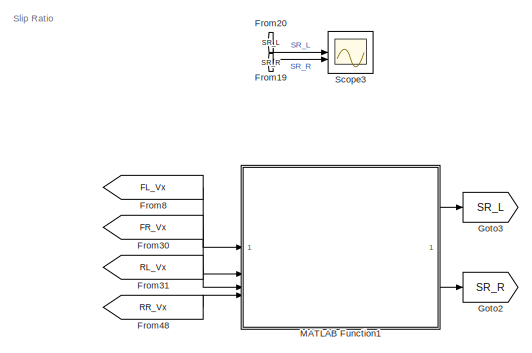
[diagram: root canvas - part 1/8, top left region]
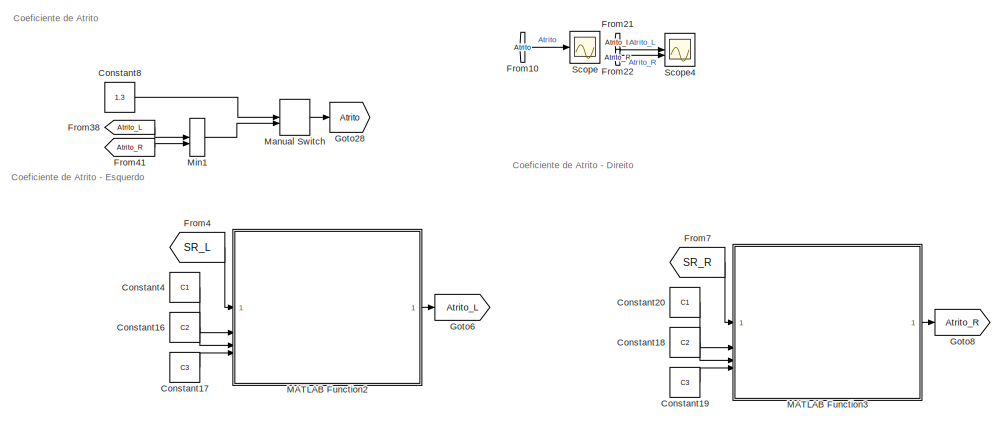
[diagram: root canvas - part 2/8, top left region]
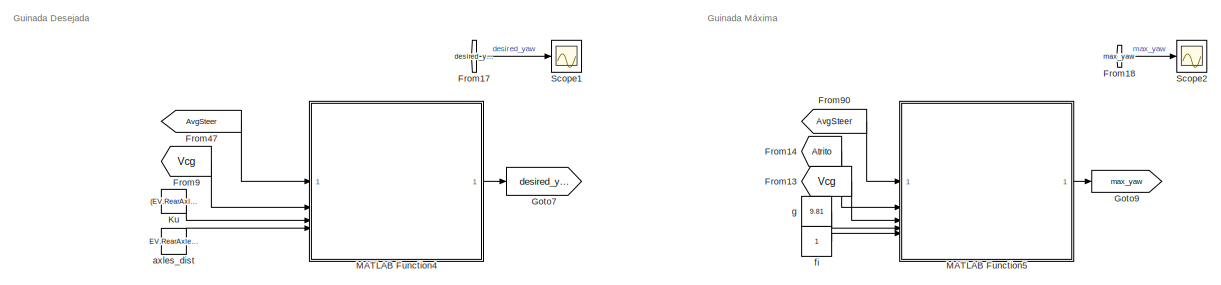
[diagram: root canvas - part 3/8, middle left region]
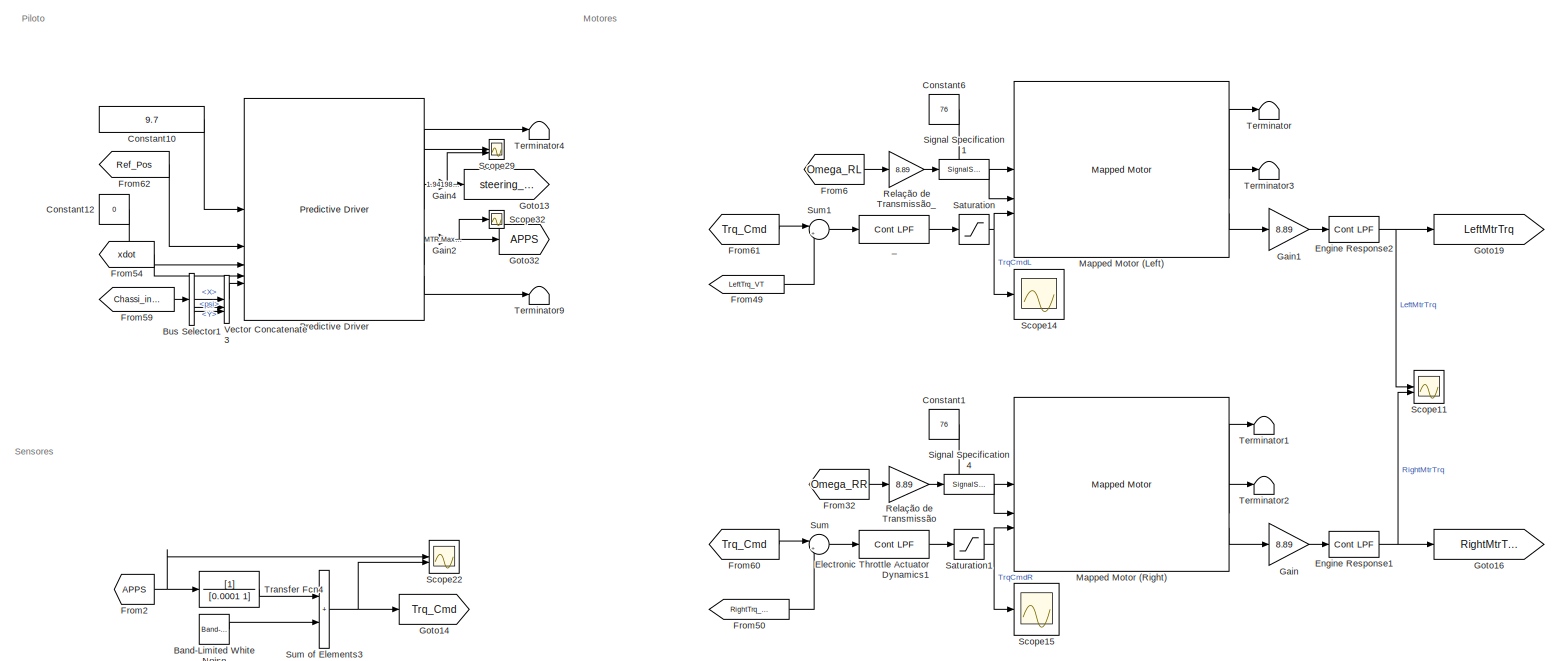
[diagram: root canvas - part 4/8, central region]
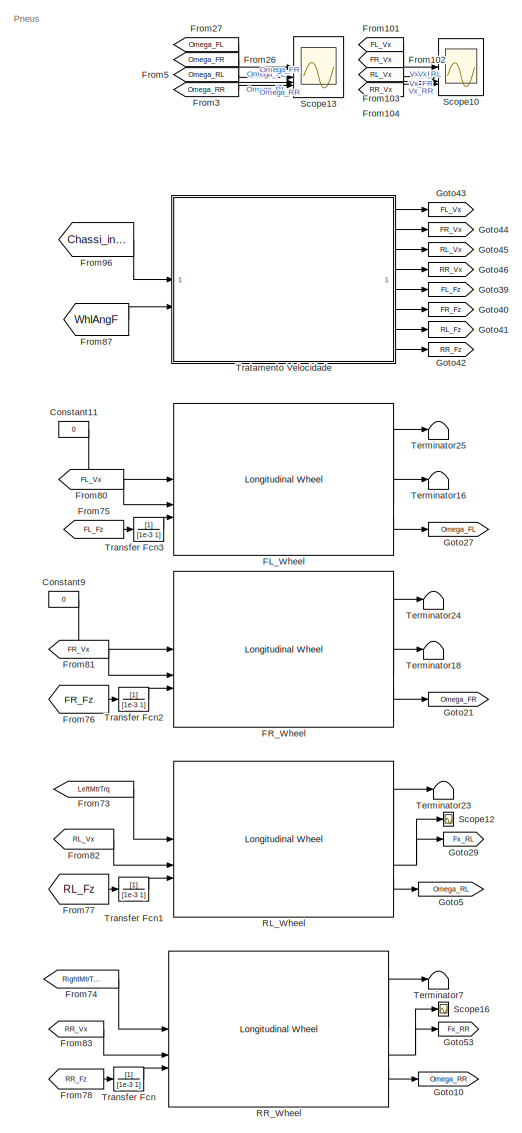
[diagram: root canvas - part 5/8, middle right region]
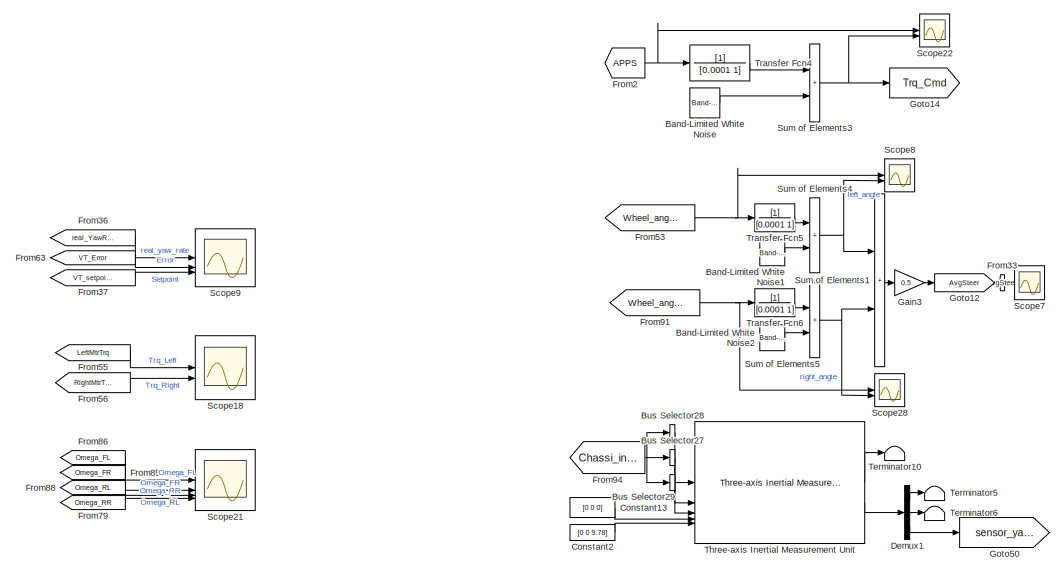
[diagram: root canvas - part 6/8, bottom center region]
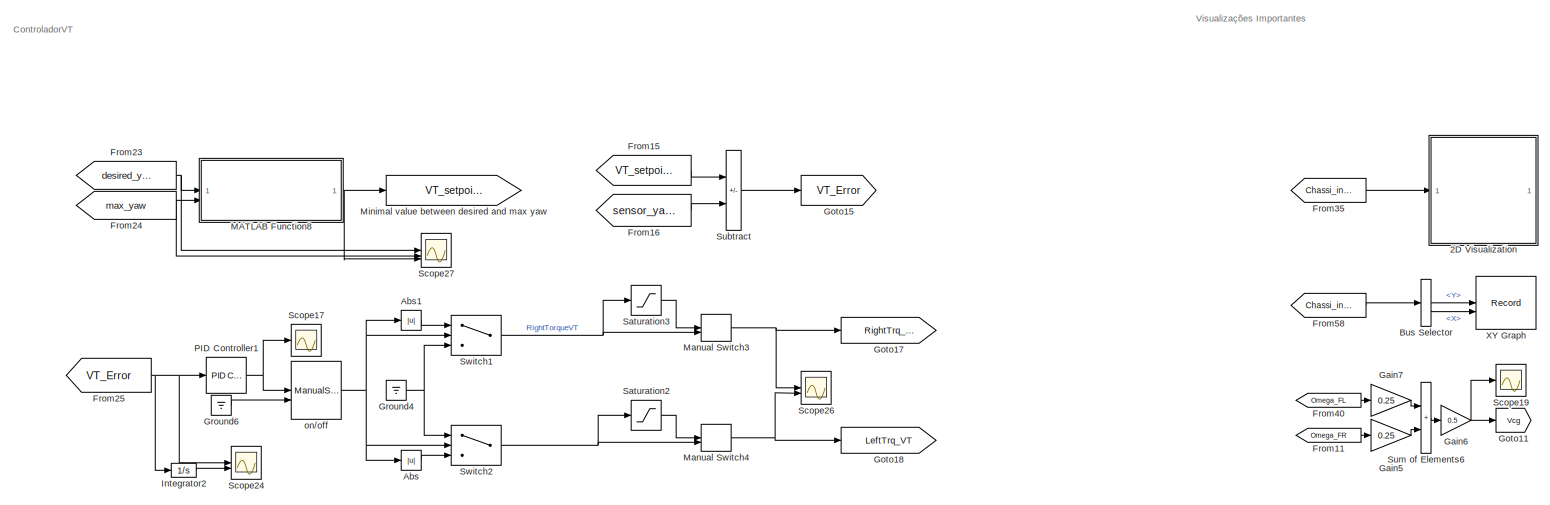
[diagram: root canvas - part 7/8, bottom left region]
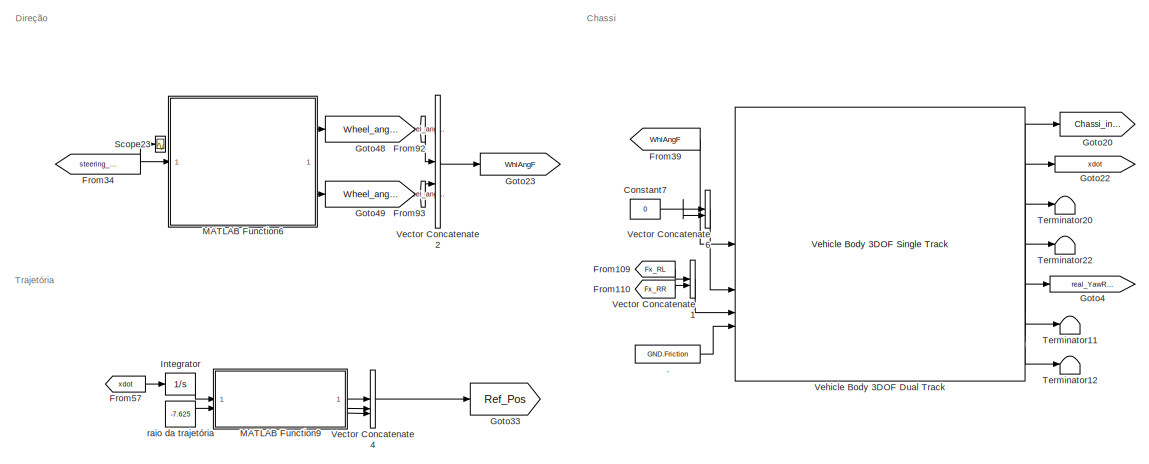
[diagram: root canvas - part 8/8, bottom right region]
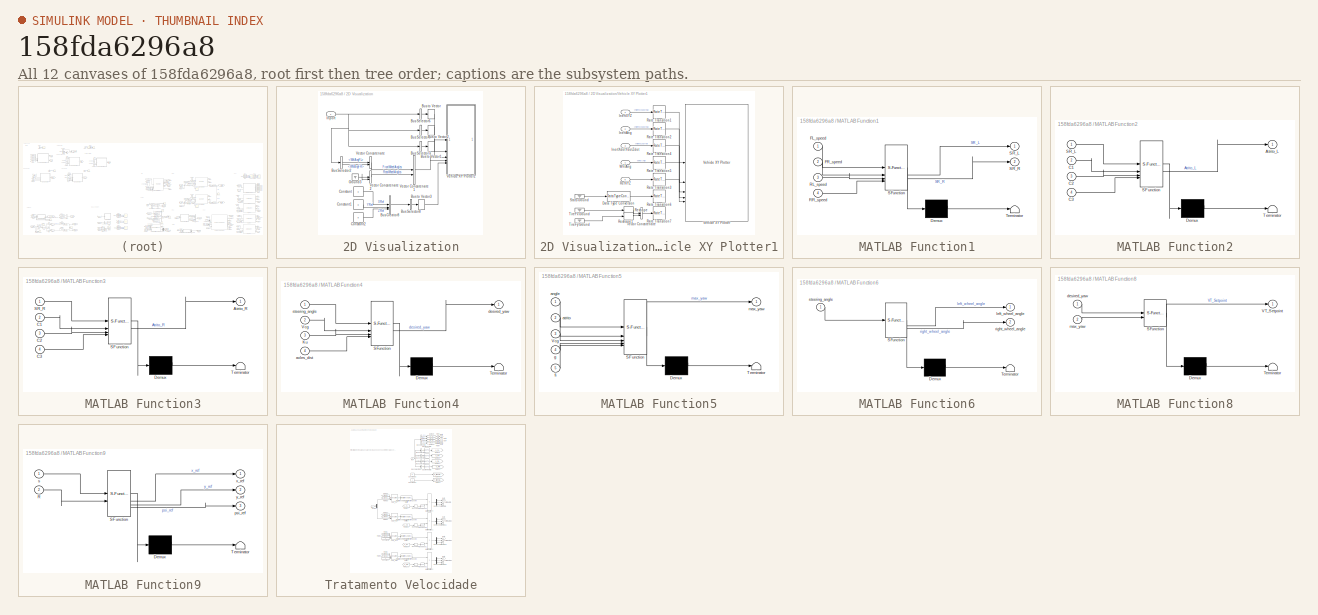
[diagram: thumbnail index - all 12 canvases of the model, root first then tree order]
MODEL slx_158fda6296a8
KIND model
CONFIG AbsTol = auto
CONFIG EnableMultiTasking = off
CONFIG FixedStep = auto
CONFIG MaxStep = 1e-3
CONFIG MinStep = auto
CONFIG RelTol = 1e-3
CONFIG SampleTimeConstraint = Unconstrained
CONFIG SolverName = VariableStepAuto
CONFIG StartTime = 0.0
CONFIG StopTime = 16
WORKSPACE source: mxarray member
WORKSPACE w = 0.5
BLOCK [Constant] .
  Value = GND.Friction
BLOCK [SubSystem] 2D Visualization
BLOCK [BusCreator] 2D Visualization/Bus Creator8
  DisplayOption = bar
  InheritFromInputs = on
  Inputs = 3
BLOCK [BusSelector] 2D Visualization/Bus Selector1
  OutputAsBus = on
  OutputSignals = InertFrm.Cg.Ang.phi,InertFrm.Cg.Ang.theta,InertFrm.Cg.Ang.psi
BLOCK [BusSelector] 2D Visualization/Bus Selector2
  OutputSignals = BdyFrm.FrntAxl.Steer.WhlAngFL,BdyFrm.FrntAxl.Steer.WhlAngFR
BLOCK [BusSelector] 2D Visualization/Bus Selector6
  OutputAsBus = on
  OutputSignals = InertFrm.Geom.Disp.X,InertFrm.Geom.Disp.Y,InertFrm.Geom.Disp.Z
BLOCK [BusSelector] 2D Visualization/Bus Selector7
  OutputAsBus = on
  OutputSignals = InertFrm.Geom.Vel.Xdot,InertFrm.Geom.Vel.Ydot,InertFrm.Geom.Vel.Zdot
BLOCK [BusSelector] 2D Visualization/Bus Selector8
  OutputAsBus = on
  OutputSignals = XRef,YRef,ZRef
BLOCK [BusToVector] 2D Visualization/Bus to Vector
BLOCK [BusToVector] 2D Visualization/Bus to Vector1
BLOCK [BusToVector] 2D Visualization/Bus to Vector2
BLOCK [BusToVector] 2D Visualization/Bus to Vector3
BLOCK [Constant] 2D Visualization/Constant
  Value = 0
BLOCK [Constant] 2D Visualization/Constant1
  Value = 0
BLOCK [Constant] 2D Visualization/Constant2
  Value = 0
BLOCK [Ground] 2D Visualization/Ground3
BLOCK [Inport] 2D Visualization/Inport
BLOCK [Concatenate] 2D Visualization/Vector Concatenate
BLOCK [Concatenate] 2D Visualization/Vector Concatenate1
BLOCK [Concatenate] 2D Visualization/Vector Concatenate2
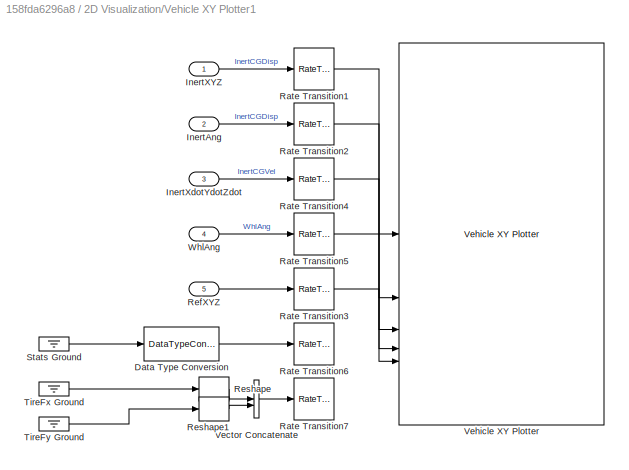
BLOCK [SubSystem] 2D Visualization/Vehicle XY Plotter1
BLOCK [DataTypeConversion] 2D Visualization/Vehicle XY Plotter1/Data Type Conversion
  OutDataTypeStr = double
  RndMeth = Floor
  SaturateOnIntegerOverflow = off
BLOCK [Inport] 2D Visualization/Vehicle XY Plotter1/InertAng
  Port = 2
BLOCK [Inport] 2D Visualization/Vehicle XY Plotter1/InertXYZ
BLOCK [Inport] 2D Visualization/Vehicle XY Plotter1/InertXdotYdotZdot
  Port = 3
BLOCK [RateTransition] 2D Visualization/Vehicle XY Plotter1/Rate Transition1
  Deterministic = off
  OutPortSampleTime = pltDT
BLOCK [RateTransition] 2D Visualization/Vehicle XY Plotter1/Rate Transition2
  Deterministic = off
  OutPortSampleTime = pltDT
BLOCK [RateTransition] 2D Visualization/Vehicle XY Plotter1/Rate Transition3
  Deterministic = off
  OutPortSampleTime = pltDT
BLOCK [RateTransition] 2D Visualization/Vehicle XY Plotter1/Rate Transition4
  Deterministic = off
  OutPortSampleTime = pltDT
BLOCK [RateTransition] 2D Visualization/Vehicle XY Plotter1/Rate Transition5
  Deterministic = off
  OutPortSampleTime = pltDT
BLOCK [RateTransition] 2D Visualization/Vehicle XY Plotter1/Rate Transition6
  Deterministic = off
  OutPortSampleTime = pltDT
BLOCK [RateTransition] 2D Visualization/Vehicle XY Plotter1/Rate Transition7
  Deterministic = off
  OutPortSampleTime = pltDT
BLOCK [Inport] 2D Visualization/Vehicle XY Plotter1/RefXYZ
  Port = 5
BLOCK [Reshape] 2D Visualization/Vehicle XY Plotter1/Reshape
  OutputDimensionality = Row vector (2-D)
BLOCK [Reshape] 2D Visualization/Vehicle XY Plotter1/Reshape1
  OutputDimensionality = Row vector (2-D)
BLOCK [Ground] 2D Visualization/Vehicle XY Plotter1/Stats Ground
BLOCK [Ground] 2D Visualization/Vehicle XY Plotter1/TireFx Ground
BLOCK [Ground] 2D Visualization/Vehicle XY Plotter1/TireFy Ground
BLOCK [Concatenate] 2D Visualization/Vehicle XY Plotter1/Vector Concatenate
  Mode = Multidimensional array
BLOCK [Reference] 2D Visualization/Vehicle XY Plotter1/Vehicle XY Plotter  REF=vehdynlibviscommon/Vehicle XY Plotter
  SourceBlock = vehdynlibviscommon/Vehicle XY Plotter
  SourceType = Vehicle XY Plotter
BLOCK [Inport] 2D Visualization/Vehicle XY Plotter1/WhlAng
  Port = 4
BLOCK [Abs] Abs
  SaturateOnIntegerOverflow = off
BLOCK [Abs] Abs1
  SaturateOnIntegerOverflow = off
BLOCK [Reference] Band-Limited White Noise  REF=simulink/Sources/Band-Limited
White Noise
  SourceBlock = simulink/Sources/Band-Limited\nWhite Noise
  SourceType = Band-Limited White Noise.
BLOCK [Reference] Band-Limited White Noise1  REF=simulink/Sources/Band-Limited
White Noise
  SourceBlock = simulink/Sources/Band-Limited\nWhite Noise
  SourceType = Band-Limited White Noise.
BLOCK [Reference] Band-Limited White Noise2  REF=simulink/Sources/Band-Limited
White Noise
  SourceBlock = simulink/Sources/Band-Limited\nWhite Noise
  SourceType = Band-Limited White Noise.
BLOCK [BusSelector] Bus Selector
  OutputSignals = InertFrm.Cg.Disp.Y,InertFrm.Cg.Disp.X
BLOCK [BusSelector] Bus Selector1
  OutputSignals = InertFrm.Cg.Disp.X,InertFrm.Cg.Disp.Y,InertFrm.Cg.Ang.psi
BLOCK [BusSelector] Bus Selector27
  OutputAsBus = on
  OutputSignals = BdyFrm.Cg.AngVel
BLOCK [BusSelector] Bus Selector28
  OutputAsBus = on
  OutputSignals = BdyFrm.Cg.Acc.ax,BdyFrm.Cg.Acc.ay,BdyFrm.Cg.Acc.az
BLOCK [BusSelector] Bus Selector29
  OutputAsBus = on
  OutputSignals = BdyFrm.Cg.Acc.xddot,BdyFrm.Cg.Acc.yddot,BdyFrm.Cg.Acc.zddot
BLOCK [Constant] Constant1
  Value = 76
BLOCK [Constant] Constant10
  Value = 9.7
BLOCK [Constant] Constant11
  Value = 0
BLOCK [Constant] Constant12
  Value = 0
BLOCK [Constant] Constant13
  Value = [0 0 0]
BLOCK [Constant] Constant16
  Value = C2
BLOCK [Constant] Constant17
  Value = C3
BLOCK [Constant] Constant18
  Value = C2
BLOCK [Constant] Constant19
  Value = C3
BLOCK [Constant] Constant2
  Value = [0 0 9.78]
BLOCK [Constant] Constant20
  Value = C1
BLOCK [Constant] Constant4
  Value = C1
BLOCK [Constant] Constant6
  Value = 76
BLOCK [Constant] Constant7
  Value = 0
BLOCK [Constant] Constant8
  Value = 1.3
BLOCK [Constant] Constant9
  Value = 0
BLOCK [Demux] Demux1
  Outputs = 3
BLOCK [Reference] Electronic Throttle Actuator Dynamics1  REF=autolibutils/Cont LPF
  SourceBlock = autolibutils/Cont LPF
BLOCK [Reference] Engine Response1  REF=autolibutils/Cont LPF
  SourceBlock = autolibutils/Cont LPF
BLOCK [Reference] Engine Response2  REF=autolibutils/Cont LPF
  NameLocation = top
  SourceBlock = autolibutils/Cont LPF
BLOCK [Reference] FL_Wheel  REF=autolibshared/Longitudinal Wheel
  LibrarySourceBlock = vehdynlibtire/Longitudinal Wheel - Disc Brake
  SourceBlock = autolibshared/Longitudinal Wheel
  SourceType = Longitudinal Wheel
BLOCK [Reference] FR_Wheel  REF=autolibshared/Longitudinal Wheel
  LibrarySourceBlock = vehdynlibtire/Longitudinal Wheel - Disc Brake
  SourceBlock = autolibshared/Longitudinal Wheel
  SourceType = Longitudinal Wheel
BLOCK [From] From10
  GotoTag = Atrito
BLOCK [From] From101
  GotoTag = FL_Vx
BLOCK [From] From102
  GotoTag = FR_Vx
BLOCK [From] From103
  GotoTag = RL_Vx
BLOCK [From] From104
  GotoTag = RR_Vx
BLOCK [From] From109
  GotoTag = Fx_RL
BLOCK [From] From11
  GotoTag = Omega_FR
BLOCK [From] From110
  GotoTag = Fx_RR
BLOCK [From] From13
  GotoTag = Vcg
BLOCK [From] From14
  GotoTag = Atrito
BLOCK [From] From15
  GotoTag = VT_setpoint
BLOCK [From] From16
  GotoTag = sensor_yaw_rate
BLOCK [From] From17
  GotoTag = desired_yaw
BLOCK [From] From18
  GotoTag = max_yaw
BLOCK [From] From19
  GotoTag = SR_R
BLOCK [From] From2
  GotoTag = APPS
BLOCK [From] From20
  GotoTag = SR_L
BLOCK [From] From21
  GotoTag = Atrito_L
BLOCK [From] From22
  GotoTag = Atrito_R
BLOCK [From] From23
  GotoTag = desired_yaw
BLOCK [From] From24
  GotoTag = max_yaw
BLOCK [From] From25
  GotoTag = VT_Error
BLOCK [From] From26
  GotoTag = Omega_FR
BLOCK [From] From27
  GotoTag = Omega_FL
BLOCK [From] From3
  GotoTag = Omega_RR
BLOCK [From] From30
  GotoTag = FR_Vx
BLOCK [From] From31
  GotoTag = RL_Vx
BLOCK [From] From32
  GotoTag = Omega_RR
BLOCK [From] From33
  GotoTag = AvgSteer
BLOCK [From] From34
  GotoTag = steering_angle
BLOCK [From] From35
  GotoTag = Chassi_info
BLOCK [From] From36
  GotoTag = real_YawRate
BLOCK [From] From37
  GotoTag = VT_setpoint
BLOCK [From] From38
  GotoTag = Atrito_L
BLOCK [From] From39
  GotoTag = WhlAngF
BLOCK [From] From4
  GotoTag = SR_L
BLOCK [From] From40
  GotoTag = Omega_FL
BLOCK [From] From41
  GotoTag = Atrito_R
BLOCK [From] From47
  GotoTag = AvgSteer
BLOCK [From] From48
  GotoTag = RR_Vx
BLOCK [From] From49
  GotoTag = LeftTrq_VT
BLOCK [From] From5
  GotoTag = Omega_RL
BLOCK [From] From50
  GotoTag = RightTrq_VT
BLOCK [From] From53
  GotoTag = Wheel_angle_L
BLOCK [From] From54
  GotoTag = xdot
BLOCK [From] From55
  GotoTag = LeftMtrTrq
BLOCK [From] From56
  GotoTag = RightMtrTrq
BLOCK [From] From57
  GotoTag = xdot
BLOCK [From] From58
  GotoTag = Chassi_info
BLOCK [From] From59
  GotoTag = Chassi_info
BLOCK [From] From6
  GotoTag = Omega_RL
BLOCK [From] From60
  GotoTag = Trq_Cmd
BLOCK [From] From61
  GotoTag = Trq_Cmd
BLOCK [From] From62
  GotoTag = Ref_Pos
BLOCK [From] From63
  GotoTag = VT_Error
BLOCK [From] From7
  GotoTag = SR_R
BLOCK [From] From73
  GotoTag = LeftMtrTrq
BLOCK [From] From74
  GotoTag = RightMtrTrq
BLOCK [From] From75
  GotoTag = FL_Fz
BLOCK [From] From76
  GotoTag = FR_Fz
BLOCK [From] From77
  GotoTag = RL_Fz
BLOCK [From] From78
  GotoTag = RR_Fz
BLOCK [From] From79
  GotoTag = Omega_RR
BLOCK [From] From8
  GotoTag = FL_Vx
BLOCK [From] From80
  GotoTag = FL_Vx
BLOCK [From] From81
  GotoTag = FR_Vx
BLOCK [From] From82
  GotoTag = RL_Vx
BLOCK [From] From83
  GotoTag = RR_Vx
BLOCK [From] From85
  GotoTag = Omega_FR
BLOCK [From] From86
  GotoTag = Omega_FL
BLOCK [From] From87
  GotoTag = WhlAngF
BLOCK [From] From88
  GotoTag = Omega_RL
BLOCK [From] From9
  GotoTag = Vcg
BLOCK [From] From90
  GotoTag = AvgSteer
BLOCK [From] From91
  GotoTag = Wheel_angle_R
BLOCK [From] From92
  GotoTag = Wheel_angle_L
BLOCK [From] From93
  GotoTag = Wheel_angle_R
BLOCK [From] From94
  GotoTag = Chassi_info
BLOCK [From] From96
  GotoTag = Chassi_info
BLOCK [Gain] Gain
  Gain = 8.89
BLOCK [Gain] Gain1
  Gain = 8.89
BLOCK [Gain] Gain2
  Gain = MTR.MaxTorque
BLOCK [Gain] Gain3
  Gain = 0.5
BLOCK [Gain] Gain4
  Gain = 1.941983885
BLOCK [Gain] Gain5
  Gain = 0.25
BLOCK [Gain] Gain6
  Gain = 0.5
BLOCK [Gain] Gain7
  Gain = 0.25
BLOCK [Goto] Goto10
  GotoTag = Omega_RR
BLOCK [Goto] Goto11
  GotoTag = Vcg
BLOCK [Goto] Goto12
  GotoTag = AvgSteer
BLOCK [Goto] Goto13
  GotoTag = steering_angle
BLOCK [Goto] Goto14
  GotoTag = Trq_Cmd
BLOCK [Goto] Goto15
  GotoTag = VT_Error
BLOCK [Goto] Goto16
  GotoTag = RightMtrTrq
BLOCK [Goto] Goto17
  GotoTag = RightTrq_VT
BLOCK [Goto] Goto18
  GotoTag = LeftTrq_VT
BLOCK [Goto] Goto19
  GotoTag = LeftMtrTrq
BLOCK [Goto] Goto2
  GotoTag = SR_R
BLOCK [Goto] Goto20
  GotoTag = Chassi_info
BLOCK [Goto] Goto21
  GotoTag = Omega_FR
BLOCK [Goto] Goto22
  GotoTag = xdot
BLOCK [Goto] Goto23
  GotoTag = WhlAngF
BLOCK [Goto] Goto27
  GotoTag = Omega_FL
BLOCK [Goto] Goto28
  GotoTag = Atrito
BLOCK [Goto] Goto29
  GotoTag = Fx_RL
BLOCK [Goto] Goto3
  GotoTag = SR_L
BLOCK [Goto] Goto32
  GotoTag = APPS
BLOCK [Goto] Goto33
  GotoTag = Ref_Pos
BLOCK [Goto] Goto39
  GotoTag = FL_Fz
BLOCK [Goto] Goto4
  GotoTag = real_YawRate
BLOCK [Goto] Goto40
  GotoTag = FR_Fz
BLOCK [Goto] Goto41
  GotoTag = RL_Fz
BLOCK [Goto] Goto42
  GotoTag = RR_Fz
BLOCK [Goto] Goto43
  GotoTag = FL_Vx
BLOCK [Goto] Goto44
  GotoTag = FR_Vx
BLOCK [Goto] Goto45
  GotoTag = RL_Vx
BLOCK [Goto] Goto46
  GotoTag = RR_Vx
BLOCK [Goto] Goto48
  GotoTag = Wheel_angle_L
BLOCK [Goto] Goto49
  GotoTag = Wheel_angle_R
BLOCK [Goto] Goto5
  GotoTag = Omega_RL
BLOCK [Goto] Goto50
  GotoTag = sensor_yaw_rate
BLOCK [Goto] Goto53
  GotoTag = Fx_RR
BLOCK [Goto] Goto6
  GotoTag = Atrito_L
BLOCK [Goto] Goto7
  GotoTag = desired_yaw
BLOCK [Goto] Goto8
  GotoTag = Atrito_R
BLOCK [Goto] Goto9
  GotoTag = max_yaw
BLOCK [Ground] Ground4
BLOCK [Ground] Ground6
BLOCK [Integrator] Integrator
BLOCK [Integrator] Integrator2
BLOCK [Constant] Ku
  NameLocation = left
  Value = (EV.RearAxlePositionfromCG*EV.Mass)/(EV.CornerStiffFront *EV.WheelBase)-(EV.FrontAxlePositionfromCG*EV.Mass)/(EV.CornerStiffRear*EV.WheelBase)
BLOCK [SubSystem] MATLAB Function1
  ErrorFcn = Stateflow.Translate.translate
  PermitHierarchicalResolution = ExplicitOnly
  SFBlockType = MATLAB Function
  TreatAsAtomicUnit = on
BLOCK [Demux] MATLAB Function1/ Demux 
  Outputs = 1
BLOCK [S-Function] MATLAB Function1/ SFunction 
  EnableBusSupport = off
  FunctionName = sf_sfun
  PortCounts = [4 3]
  SFcnIsStateOwnerBlock = off
  SFunctionDeploymentMode = off
  Tag = Stateflow S-Function 1
BLOCK [Terminator] MATLAB Function1/ Terminator 
BLOCK [Inport] MATLAB Function1/FL_speed
BLOCK [Inport] MATLAB Function1/FR_speed
  Port = 2
BLOCK [Inport] MATLAB Function1/RL_speed
  Port = 3
BLOCK [Inport] MATLAB Function1/RR_speed
  Port = 4
BLOCK [Outport] MATLAB Function1/SR_L
BLOCK [Outport] MATLAB Function1/SR_R
  Port = 2
BLOCK [SubSystem] MATLAB Function2
  ErrorFcn = Stateflow.Translate.translate
  PermitHierarchicalResolution = ExplicitOnly
  SFBlockType = MATLAB Function
  TreatAsAtomicUnit = on
BLOCK [Demux] MATLAB Function2/ Demux 
  Outputs = 1
BLOCK [S-Function] MATLAB Function2/ SFunction 
  EnableBusSupport = off
  FunctionName = sf_sfun
  PortCounts = [4 2]
  SFcnIsStateOwnerBlock = off
  SFunctionDeploymentMode = off
  Tag = Stateflow S-Function 3
BLOCK [Terminator] MATLAB Function2/ Terminator 
BLOCK [Outport] MATLAB Function2/Atrito_L
BLOCK [Inport] MATLAB Function2/C1
  Port = 2
BLOCK [Inport] MATLAB Function2/C2
  Port = 3
BLOCK [Inport] MATLAB Function2/C3
  Port = 4
BLOCK [Inport] MATLAB Function2/SR_L
BLOCK [SubSystem] MATLAB Function3
  ErrorFcn = Stateflow.Translate.translate
  PermitHierarchicalResolution = ExplicitOnly
  SFBlockType = MATLAB Function
  TreatAsAtomicUnit = on
BLOCK [Demux] MATLAB Function3/ Demux 
  Outputs = 1
BLOCK [S-Function] MATLAB Function3/ SFunction 
  EnableBusSupport = off
  FunctionName = sf_sfun
  PortCounts = [4 2]
  SFcnIsStateOwnerBlock = off
  SFunctionDeploymentMode = off
  Tag = Stateflow S-Function 4
BLOCK [Terminator] MATLAB Function3/ Terminator 
BLOCK [Outport] MATLAB Function3/Atrito_R
BLOCK [Inport] MATLAB Function3/C1
  Port = 2
BLOCK [Inport] MATLAB Function3/C2
  Port = 3
BLOCK [Inport] MATLAB Function3/C3
  Port = 4
BLOCK [Inport] MATLAB Function3/SR_R
BLOCK [SubSystem] MATLAB Function4
  ErrorFcn = Stateflow.Translate.translate
  PermitHierarchicalResolution = ExplicitOnly
  SFBlockType = MATLAB Function
  TreatAsAtomicUnit = on
BLOCK [Demux] MATLAB Function4/ Demux 
  Outputs = 1
BLOCK [S-Function] MATLAB Function4/ SFunction 
  EnableBusSupport = off
  FunctionName = sf_sfun
  PortCounts = [4 2]
  SFcnIsStateOwnerBlock = off
  SFunctionDeploymentMode = off
  Tag = Stateflow S-Function 5
BLOCK [Terminator] MATLAB Function4/ Terminator 
BLOCK [Inport] MATLAB Function4/Ku
  Port = 3
BLOCK [Inport] MATLAB Function4/Vcg
  Port = 2
BLOCK [Inport] MATLAB Function4/axles_dist
  Port = 4
BLOCK [Outport] MATLAB Function4/desired_yaw
BLOCK [Inport] MATLAB Function4/steering_angle
BLOCK [SubSystem] MATLAB Function5
  ErrorFcn = Stateflow.Translate.translate
  PermitHierarchicalResolution = ExplicitOnly
  SFBlockType = MATLAB Function
  TreatAsAtomicUnit = on
BLOCK [Demux] MATLAB Function5/ Demux 
  Outputs = 1
BLOCK [S-Function] MATLAB Function5/ SFunction 
  EnableBusSupport = off
  FunctionName = sf_sfun
  PortCounts = [5 2]
  SFcnIsStateOwnerBlock = off
  SFunctionDeploymentMode = off
  Tag = Stateflow S-Function 6
BLOCK [Terminator] MATLAB Function5/ Terminator 
BLOCK [Inport] MATLAB Function5/Vcg
  Port = 3
BLOCK [Inport] MATLAB Function5/angle
BLOCK [Inport] MATLAB Function5/atrito
  Port = 2
BLOCK [Inport] MATLAB Function5/fi
  Port = 5
BLOCK [Inport] MATLAB Function5/g
  Port = 4
BLOCK [Outport] MATLAB Function5/max_yaw
BLOCK [SubSystem] MATLAB Function6
  ErrorFcn = Stateflow.Translate.translate
  PermitHierarchicalResolution = ExplicitOnly
  SFBlockType = MATLAB Function
  TreatAsAtomicUnit = on
BLOCK [Demux] MATLAB Function6/ Demux 
  Outputs = 1
BLOCK [S-Function] MATLAB Function6/ SFunction 
  EnableBusSupport = off
  FunctionName = sf_sfun
  PortCounts = [1 3]
  SFcnIsStateOwnerBlock = off
  SFunctionDeploymentMode = off
  Tag = Stateflow S-Function 7
BLOCK [Terminator] MATLAB Function6/ Terminator 
BLOCK [Outport] MATLAB Function6/left_wheel_angle
BLOCK [Outport] MATLAB Function6/right_wheel_angle
  Port = 2
BLOCK [Inport] MATLAB Function6/steering_angle
BLOCK [SubSystem] MATLAB Function8
  ErrorFcn = Stateflow.Translate.translate
  PermitHierarchicalResolution = ExplicitOnly
  SFBlockType = MATLAB Function
  TreatAsAtomicUnit = on
BLOCK [Demux] MATLAB Function8/ Demux 
  Outputs = 1
BLOCK [S-Function] MATLAB Function8/ SFunction 
  EnableBusSupport = off
  FunctionName = sf_sfun
  PortCounts = [2 2]
  SFcnIsStateOwnerBlock = off
  SFunctionDeploymentMode = off
  Tag = Stateflow S-Function 9
BLOCK [Terminator] MATLAB Function8/ Terminator 
BLOCK [Outport] MATLAB Function8/VT_Setpoint
BLOCK [Inport] MATLAB Function8/desired_yaw
BLOCK [Inport] MATLAB Function8/max_yaw
  Port = 2
BLOCK [SubSystem] MATLAB Function9
  ErrorFcn = Stateflow.Translate.translate
  PermitHierarchicalResolution = ExplicitOnly
  SFBlockType = MATLAB Function
  TreatAsAtomicUnit = on
BLOCK [Demux] MATLAB Function9/ Demux 
  Outputs = 1
BLOCK [S-Function] MATLAB Function9/ SFunction 
  EnableBusSupport = off
  FunctionName = sf_sfun
  PortCounts = [2 4]
  SFcnIsStateOwnerBlock = off
  SFunctionDeploymentMode = off
  Tag = Stateflow S-Function 10
BLOCK [Terminator] MATLAB Function9/ Terminator 
BLOCK [Inport] MATLAB Function9/R
  Port = 2
BLOCK [Outport] MATLAB Function9/psi_ref
  Port = 3
BLOCK [Inport] MATLAB Function9/s
BLOCK [Outport] MATLAB Function9/x_ref
BLOCK [Outport] MATLAB Function9/y_ref
  Port = 2
BLOCK [ManualSwitch] Manual Switch
BLOCK [ManualSwitch] Manual Switch3
  CurrentSetting = 0
BLOCK [ManualSwitch] Manual Switch4
  CurrentSetting = 0
BLOCK [Reference] Mapped Motor (Left)  REF=autolibmappedmotor/Mapped Motor
  LibrarySourceBlock = autolibemachines/Mapped Motor
  SourceBlock = autolibmappedmotor/Mapped Motor
  SourceType = MappedMotor
BLOCK [Reference] Mapped Motor (Right)  REF=autolibmappedmotor/Mapped Motor
  LibrarySourceBlock = autolibemachines/Mapped Motor
  SourceBlock = autolibmappedmotor/Mapped Motor
  SourceType = MappedMotor
BLOCK [MinMax] Min1
  Inputs = 2
BLOCK [Goto] Minimal value between desired and max yaw
  GotoTag = VT_setpoint
BLOCK [Reference] PID Controller1  REF=slpidlib/PID Controller
  SourceBlock = slpidlib/PID Controller
  SourceType = PID 1dof
BLOCK [Reference] Predictive Driver  REF=vehdynlibdriver/Predictive Driver
  SourceBlock = vehdynlibdriver/Predictive Driver
  SourceType = Predictive Driver
BLOCK [Reference] RL_Wheel  REF=autolibshared/Longitudinal Wheel
  LibrarySourceBlock = vehdynlibtire/Longitudinal Wheel - Disc Brake
  SourceBlock = autolibshared/Longitudinal Wheel
  SourceType = Longitudinal Wheel
BLOCK [Reference] RR_Wheel  REF=autolibshared/Longitudinal Wheel
  LibrarySourceBlock = vehdynlibtire/Longitudinal Wheel - Disc Brake
  SourceBlock = autolibshared/Longitudinal Wheel
  SourceType = Longitudinal Wheel
BLOCK [Gain] Relação de Transmissão
  Gain = 8.89
BLOCK [Gain] Relação de Transmissão_
  Gain = 8.89
BLOCK [Saturate] Saturation
  LowerLimit = 0
  UpperLimit = 45.85
BLOCK [Saturate] Saturation1
  LowerLimit = 0
  UpperLimit = 45.85
BLOCK [Saturate] Saturation2
  LowerLimit = 0
  UpperLimit = 11.7
BLOCK [Saturate] Saturation3
  LowerLimit = 0
  UpperLimit = 11.7
BLOCK [Scope] Scope
  ActiveDisplayYMaximum = 2.1444123758377733
  ActiveDisplayYMinimum = 0.49900742625401007
  Floating = off
  GraphicalSettings = {"AxesScalingProperties":{"AlignXAxis":"Center","AlignYAxis":"Center","AutoScaleXAxisLimits":false,"AxesScaling":"Manual","AxesScalingNumUpdates":10,"ExpandOnly":true,"ScaleAxesLimitsAtStop":false,"XAxisDataRange":100,"YAxisDataRange":80},"DisplayProperties":{"ColorOrder":["auto","auto","auto","auto","auto","auto","auto","auto","auto","auto","auto","auto","auto","auto","auto","auto","auto","auto",...<+2010ch>
  MultipleDisplayCache = [{"MaxYLimMag":2.3,"MaxYLimReal":2.1444123758377733,"MinYLimMag":0.30000000000000004,"MinYLimReal":0.49900742625401007,"PlotAsMagnitudePhase":false,"ShowGrid":true,"ShowLegend":true,"Title":"%<SignalLabel>","YLabel":""}]
  NumInputPorts = 1
  ScopeFrameLocation = window
  ShowLegend = on
  WasSavedAsWebScope = on
  WindowPosition = [680.000000,330.000000,560.000000,420.000000,]
BLOCK [Scope] Scope1
  ActiveDisplayYMaximum = -0.55422255768943307
  ActiveDisplayYMinimum = -2.2070355488430327
  DataLoggingVariableName = ScopeData1
  Floating = off
  GraphicalSettings = {"AxesScalingProperties":{"AlignXAxis":"Center","AlignYAxis":"Center","AutoScaleXAxisLimits":false,"AxesScaling":"Manual","AxesScalingNumUpdates":10,"ExpandOnly":true,"ScaleAxesLimitsAtStop":false,"XAxisDataRange":100,"YAxisDataRange":80},"DisplayProperties":{"ColorOrder":["auto","auto","auto","auto","auto","auto","auto","auto","auto","auto","auto","auto","auto","auto","auto","auto","auto","auto",...<+2012ch>
  MultipleDisplayCache = [{"MaxYLimMag":2.3076498860211849,"MaxYLimReal":-0.55422255768943307,"MinYLimMag":0,"MinYLimReal":-2.2070355488430327,"PlotAsMagnitudePhase":false,"ShowGrid":true,"ShowLegend":true,"Title":"%<SignalLabel>","YLabel":""}]
  NumInputPorts = 1
  ScopeFrameLocation = window
  ShowLegend = on
  WasSavedAsWebScope = on
  WindowPosition = [99.000000,80.000000,537.000000,406.000000,]
BLOCK [Scope] Scope10
  ActiveDisplayYMaximum = 29.638341189168361
  ActiveDisplayYMinimum = -3.293149021018706
  ContainerLayout = {"WindowBounds":[301,72,1153,621],"gridDimensions":{"w":1,"h":1},"tileCount":1,"tileCoverage":1,"columnWeights":1,"rowWeights":1,"tileOccupancy":{"children":[{"id":"/Scope26"},{"id":"/Scope9"},{"id":"/Scope18"},{"id":"/Scope32"},{"id":"/Scope10"},{"id":"/Scope11"},{"id":"/Scope13"},{"id":"/Scope19"}]}}  <repeated x8 — deduplicated; at blocks: Scope10, Scope11, Scope13, Scope18, Scope19, Scope26, Scope32, Scope9>
  DataLoggingVariableName = ScopeData10
  Floating = off
  GraphicalSettings = {"Style":{"BackgroundColor":[0.12941176470588237,0.12941176470588237,0.12941176470588237],"AxesColor":[0.07058823529411765,0.07058823529411765,0.07058823529411765],"LabelsColor":[0.8509803921568627,0.8509803921568627,0.8509803921568627],"PreserveColors":false,"Visible":[true,true,false,false],"LineStyle":["-","-","-","-"],"LineWidth":[1.5,1.5,1.5,1.5],"BarWidth":[0.9,0.9,0.9,0.9],"LineColor":["aut...<+2322ch>
  MultipleDisplayCache = [{"MaxYLimMag":29.638341189168361,"MaxYLimReal":29.638341189168361,"MinYLimMag":0,"MinYLimReal":-3.293149021018706,"PlotAsMagnitudePhase":false,"ShowGrid":true,"ShowLegend":true,"Title":"%<SignalLabel>","YLabel":""}]
  NumInputPorts = 4
  ScopeFrameLocation = container
  ShowLegend = on
  Visible = on
  WasSavedAsWebScope = on
  WindowPosition = [301.000000,387.000000,1153.000000,621.000000,]
BLOCK [Scope] Scope11
  ActiveDisplayYMaximum = 454.37540205838974
  ActiveDisplayYMinimum = -50.486155784265513
  DataLoggingVariableName = ScopeData11
  Floating = off
  GraphicalSettings = {"Style":{"BackgroundColor":[1,1,1],"AxesColor":[1,1,1],"LabelsColor":[0,0,0],"PreserveColors":false,"Visible":[true,true],"LineStyle":["-","-"],"LineWidth":[6,6],"BarWidth":[0.9,0.9],"LineColor":["auto","auto"],"LineFaceAlpha":[1,1],"LineEdgeAlpha":[1,1],"Marker":["none","none"],"FontSize":8.5,"LineTrueColor":[[0.9294117647058824,0.6941176470588235,0.12549019607843137],[0.06666666666666667,0.4431...<+1979ch>
  MultipleDisplayCache = [{"MaxYLimMag":454.37540205838974,"MaxYLimReal":454.37540205838974,"MinYLimMag":0,"MinYLimReal":-50.486155784265513,"PlotAsMagnitudePhase":false,"ShowGrid":true,"ShowLegend":true,"Title":"%<SignalLabel>","YLabel":""}]
  NumInputPorts = 2
  ScopeFrameLocation = container
  ShowLegend = on
  Visible = on
  WasSavedAsWebScope = on
  WindowPosition = [301.000000,387.000000,1153.000000,621.000000,]
BLOCK [Scope] Scope12
  ActiveDisplayYMaximum = 1
  ActiveDisplayYMinimum = -1
  DataLoggingVariableName = ScopeData8
  Floating = off
  GraphicalSettings = {"Style":{"BackgroundColor":[0.12941176470588237,0.12941176470588237,0.12941176470588237],"AxesColor":[0.07058823529411765,0.07058823529411765,0.07058823529411765],"LabelsColor":[0.8509803921568627,0.8509803921568627,0.8509803921568627],"PreserveColors":false,"Visible":[true],"LineStyle":["-"],"LineWidth":[1.5],"BarWidth":[0.9],"LineColor":["auto"],"LineFaceAlpha":[1],"LineEdgeAlpha":[1],"Marker":...<+1904ch>
  MultipleDisplayCache = [{"MaxYLimMag":1,"MaxYLimReal":1,"MinYLimMag":0,"MinYLimReal":-1,"PlotAsMagnitudePhase":false,"ShowGrid":true,"ShowLegend":false,"Title":"%<SignalLabel>","YLabel":""}]
  NumInputPorts = 1
  ScopeFrameLocation = window
  WasSavedAsWebScope = on
  WindowPosition = [680.000000,330.000000,560.000000,420.000000,]
BLOCK [Scope] Scope13
  ActiveDisplayYMaximum = 119.31384116942156
  ActiveDisplayYMinimum = -13.488765394999279
  DataLoggingVariableName = ScopeData13
  Floating = off
  GraphicalSettings = {"Style":{"BackgroundColor":[0.12941176470588237,0.12941176470588237,0.12941176470588237],"AxesColor":[0.07058823529411765,0.07058823529411765,0.07058823529411765],"LabelsColor":[0.8509803921568627,0.8509803921568627,0.8509803921568627],"PreserveColors":false,"Visible":[true,true,true,true],"LineStyle":["-","-","-","-"],"LineWidth":[1.5,1.5,1.5,1.5],"BarWidth":[0.9,0.9,0.9,0.9],"LineColor":["auto"...<+2350ch>
  MultipleDisplayCache = [{"MaxYLimMag":119.31384116942156,"MaxYLimReal":119.31384116942156,"MinYLimMag":0,"MinYLimReal":-13.488765394999279,"PlotAsMagnitudePhase":false,"ShowGrid":true,"ShowLegend":true,"Title":"%<SignalLabel>","YLabel":""}]
  NumInputPorts = 4
  ScopeFrameLocation = container
  ShowLegend = on
  Visible = on
  WasSavedAsWebScope = on
  WindowPosition = [301.000000,387.000000,1153.000000,621.000000,]
BLOCK [Scope] Scope14
  ActiveDisplayYMaximum = 51.581250000000004
  ActiveDisplayYMinimum = -5.7312499999999993
  DataLoggingVariableName = ScopeData14
  Floating = off
  GraphicalSettings = {"Style":{"BackgroundColor":[0.12941176470588237,0.12941176470588237,0.12941176470588237],"AxesColor":[0.07058823529411765,0.07058823529411765,0.07058823529411765],"LabelsColor":[0.8509803921568627,0.8509803921568627,0.8509803921568627],"PreserveColors":false,"Visible":[true],"LineStyle":["-"],"LineWidth":[1.5],"BarWidth":[0.9],"LineColor":["auto"],"LineFaceAlpha":[1],"LineEdgeAlpha":[1],"Marker":...<+1963ch>
  MultipleDisplayCache = [{"MaxYLimMag":51.581250000000004,"MaxYLimReal":51.581250000000004,"MinYLimMag":0,"MinYLimReal":-5.7312499999999993,"PlotAsMagnitudePhase":false,"ShowGrid":true,"ShowLegend":true,"Title":"%<SignalLabel>","YLabel":""}]
  NumInputPorts = 1
  ScopeFrameLocation = window
  ShowLegend = on
  WasSavedAsWebScope = on
  WindowPosition = [127.000000,577.000000,800.000000,404.000000,]
BLOCK [Scope] Scope15
  ActiveDisplayYMaximum = 50.625
  ActiveDisplayYMinimum = -5.6249999999999991
  DataLoggingVariableName = ScopeData15
  Floating = off
  GraphicalSettings = {"Style":{"BackgroundColor":[0.12941176470588237,0.12941176470588237,0.12941176470588237],"AxesColor":[0.07058823529411765,0.07058823529411765,0.07058823529411765],"LabelsColor":[0.8509803921568627,0.8509803921568627,0.8509803921568627],"PreserveColors":false,"Visible":[true],"LineStyle":["-"],"LineWidth":[1.5],"BarWidth":[0.9],"LineColor":["auto"],"LineFaceAlpha":[1],"LineEdgeAlpha":[1],"Marker":...<+1947ch>
  MultipleDisplayCache = [{"MaxYLimMag":50.625,"MaxYLimReal":50.625,"MinYLimMag":0,"MinYLimReal":-5.6249999999999991,"PlotAsMagnitudePhase":false,"ShowGrid":true,"ShowLegend":true,"Title":"%<SignalLabel>","YLabel":""}]
  NumInputPorts = 1
  ScopeFrameLocation = window
  ShowLegend = on
  WasSavedAsWebScope = on
  WindowPosition = [41.000000,61.000000,958.000000,484.000000,]
BLOCK [Scope] Scope16
  ActiveDisplayYMaximum = 1
  ActiveDisplayYMinimum = -1
  DataLoggingVariableName = ScopeData12
  Floating = off
  GraphicalSettings = {"Style":{"BackgroundColor":[0.12941176470588237,0.12941176470588237,0.12941176470588237],"AxesColor":[0.07058823529411765,0.07058823529411765,0.07058823529411765],"LabelsColor":[0.8509803921568627,0.8509803921568627,0.8509803921568627],"PreserveColors":false,"Visible":[true],"LineStyle":["-"],"LineWidth":[1.5],"BarWidth":[0.9],"LineColor":["auto"],"LineFaceAlpha":[1],"LineEdgeAlpha":[1],"Marker":...<+1904ch>
  MultipleDisplayCache = [{"MaxYLimMag":1,"MaxYLimReal":1,"MinYLimMag":0,"MinYLimReal":-1,"PlotAsMagnitudePhase":false,"ShowGrid":true,"ShowLegend":false,"Title":"%<SignalLabel>","YLabel":""}]
  NumInputPorts = 1
  ScopeFrameLocation = window
  WasSavedAsWebScope = on
  WindowPosition = [680.000000,330.000000,560.000000,420.000000,]
BLOCK [Scope] Scope17
  ActiveDisplayYMaximum = 106.79175042389974
  ActiveDisplayYMinimum = -481.82758849079994
  DataLoggingVariableName = ScopeData17
  Floating = off
  GraphicalSettings = {"AxesScalingProperties":{"AlignXAxis":"Center","AlignYAxis":"Center","AutoScaleXAxisLimits":false,"AxesScaling":"Manual","AxesScalingNumUpdates":10,"ExpandOnly":true,"ScaleAxesLimitsAtStop":false,"XAxisDataRange":100,"YAxisDataRange":80},"DisplayProperties":{"ColorOrder":["auto","auto","auto","auto","auto","auto","auto","auto","auto","auto","auto","auto","auto","auto","auto","auto","auto","auto",...<+2022ch>
  MultipleDisplayCache = [{"MaxYLimMag":435.83272815193624,"MaxYLimReal":106.79175042389974,"MinYLimMag":0,"MinYLimReal":-481.82758849079994,"PlotAsMagnitudePhase":false,"ShowGrid":true,"ShowLegend":false,"Title":"%<SignalLabel>","YLabel":""}]
  NumInputPorts = 1
  ScopeFrameLocation = window
  WasSavedAsWebScope = on
  WindowPosition = [200.000000,509.000000,560.000000,420.000000,]
BLOCK [Scope] Scope18
  ActiveDisplayYMaximum = 438.38821761206736
  ActiveDisplayYMinimum = -34.210926965833551
  DataLoggingVariableName = ScopeData18
  Floating = off
  GraphicalSettings = {"Style":{"BackgroundColor":[1,1,1],"AxesColor":[1,1,1],"LabelsColor":[0,0,0],"PreserveColors":false,"Visible":[true,true],"LineStyle":["-","-"],"LineWidth":[1.5,1.5],"BarWidth":[0.9,0.9],"LineColor":["auto","auto"],"LineFaceAlpha":[1,1],"LineEdgeAlpha":[1,1],"Marker":["none","none"],"FontSize":8.5,"LineTrueColor":[[0.9294117647058824,0.6941176470588235,0.12549019607843137],[0.06666666666666667,0....<+1973ch>
  MultipleDisplayCache = [{"MaxYLimMag":446.60619162611641,"MaxYLimReal":438.38821761206736,"MinYLimMag":0,"MinYLimReal":-34.210926965833551,"PlotAsMagnitudePhase":false,"ShowGrid":true,"ShowLegend":true,"Title":"%<SignalLabel>","YLabel":""}]
  NumInputPorts = 2
  ScopeFrameLocation = container
  ShowLegend = on
  Visible = on
  WasSavedAsWebScope = on
  WindowPosition = [301.000000,387.000000,1153.000000,621.000000,]
BLOCK [Scope] Scope19
  ActiveDisplayYMaximum = 10.455077746439709
  ActiveDisplayYMinimum = 7.0680523417949237
  DataLoggingVariableName = ScopeData19
  Floating = off
  GraphicalSettings = {"Style":{"BackgroundColor":[0.12941176470588237,0.12941176470588237,0.12941176470588237],"AxesColor":[0.07058823529411765,0.07058823529411765,0.07058823529411765],"LabelsColor":[0.8509803921568627,0.8509803921568627,0.8509803921568627],"PreserveColors":false,"Visible":[true],"LineStyle":["-"],"LineWidth":[1.5],"BarWidth":[0.9],"LineColor":["auto"],"LineFaceAlpha":[1],"LineEdgeAlpha":[1],"Marker":...<+1989ch>
  MultipleDisplayCache = [{"MaxYLimMag":10.838838352202231,"MaxYLimReal":10.455077746439709,"MinYLimMag":0,"MinYLimReal":7.0680523417949237,"PlotAsMagnitudePhase":false,"ShowGrid":true,"ShowLegend":false,"Title":"%<SignalLabel>","YLabel":""}]
  NumInputPorts = 1
  ScopeFrameLocation = container
  Visible = on
  WasSavedAsWebScope = on
  WindowPosition = [301.000000,387.000000,1153.000000,621.000000,]
BLOCK [Scope] Scope2
  ActiveDisplayYMaximum = 159.41250000000002
  ActiveDisplayYMinimum = -159.41250000000002
  DataLoggingVariableName = ScopeData2
  Floating = off
  GraphicalSettings = {"Style":{"BackgroundColor":[0.12941176470588237,0.12941176470588237,0.12941176470588237],"AxesColor":[0.07058823529411765,0.07058823529411765,0.07058823529411765],"LabelsColor":[0.8509803921568627,0.8509803921568627,0.8509803921568627],"PreserveColors":false,"Visible":[true],"LineStyle":["-"],"LineWidth":[1.5],"BarWidth":[0.9],"LineColor":["auto"],"LineFaceAlpha":[1],"LineEdgeAlpha":[1],"Marker":...<+1997ch>
  MultipleDisplayCache = [{"MaxYLimMag":159.41250000000002,"MaxYLimReal":159.41250000000002,"MinYLimMag":0,"MinYLimReal":-159.41250000000002,"PlotAsMagnitudePhase":false,"ShowGrid":true,"ShowLegend":true,"Title":"%<SignalLabel>","YLabel":""}]
  NumInputPorts = 1
  ScopeFrameLocation = window
  ShowLegend = on
  WasSavedAsWebScope = on
  WindowPosition = [877.000000,206.000000,560.000000,572.000000,]
BLOCK [Scope] Scope21
  ActiveDisplayYMaximum = 119.30229448248291
  ActiveDisplayYMinimum = -13.385038552066092
  DataLoggingVariableName = ScopeData21
  Floating = off
  GraphicalSettings = {"Style":{"BackgroundColor":[1,1,1],"AxesColor":[1,1,1],"LabelsColor":[0,0,0],"PreserveColors":false,"Visible":[true,true,true,true],"LineStyle":["-","-","-","-"],"LineWidth":[1.5,1.5,1.5,1.5],"BarWidth":[0.9,0.9,0.9,0.9],"LineColor":["auto","auto","auto","auto"],"LineFaceAlpha":[1,1,1,1],"LineEdgeAlpha":[1,1,1,1],"Marker":["none","none","none","none"],"FontSize":8.5,"LineTrueColor":[[0.9294117647...<+2189ch>
  MultipleDisplayCache = [{"MaxYLimMag":119.30229448248291,"MaxYLimReal":119.30229448248291,"MinYLimMag":0,"MinYLimReal":-13.385038552066092,"PlotAsMagnitudePhase":false,"ShowGrid":true,"ShowLegend":true,"Title":"%<SignalLabel>","YLabel":""}]
  NumInputPorts = 4
  ScopeFrameLocation = window
  ShowLegend = on
  WasSavedAsWebScope = on
  WindowPosition = [481.000000,40.000000,958.000000,1000.000000,]
BLOCK [Scope] Scope22
  ActiveDisplayYMaximum = 1
  ActiveDisplayYMinimum = -1
  DataLoggingVariableName = ScopeData16
  Floating = off
  GraphicalSettings = {"Style":{"BackgroundColor":[0.12941176470588237,0.12941176470588237,0.12941176470588237],"AxesColor":[0.07058823529411765,0.07058823529411765,0.07058823529411765],"LabelsColor":[0.8509803921568627,0.8509803921568627,0.8509803921568627],"PreserveColors":false,"Visible":[true,true],"LineStyle":["-","-"],"LineWidth":[1.5,1.5],"BarWidth":[0.9,0.9],"LineColor":["auto","auto"],"LineFaceAlpha":[1,1],"Li...<+2031ch>
  MultipleDisplayCache = [{"MaxYLimMag":1,"MaxYLimReal":1,"MinYLimMag":0,"MinYLimReal":-1,"PlotAsMagnitudePhase":false,"ShowGrid":true,"ShowLegend":false,"Title":"%<SignalLabel>","YLabel":""}]
  NumInputPorts = 2
  ScopeFrameLocation = window
  WasSavedAsWebScope = on
  WindowPosition = [680.000000,330.000000,560.000000,420.000000,]
BLOCK [Scope] Scope23
  ActiveDisplayYMaximum = 6.5795167661115495E-6
  ActiveDisplayYMinimum = -7.6049560749194345E-6
  DataLoggingVariableName = ScopeData23
  Floating = off
  GraphicalSettings = {"Style":{"BackgroundColor":[0.12941176470588237,0.12941176470588237,0.12941176470588237],"AxesColor":[0.07058823529411765,0.07058823529411765,0.07058823529411765],"LabelsColor":[0.8509803921568627,0.8509803921568627,0.8509803921568627],"PreserveColors":false,"Visible":[true],"LineStyle":["-"],"LineWidth":[1.5],"BarWidth":[0.9],"LineColor":["auto"],"LineFaceAlpha":[1],"LineEdgeAlpha":[1],"Marker":...<+1995ch>
  MultipleDisplayCache = [{"MaxYLimMag":7.6049560749194345E-6,"MaxYLimReal":6.5795167661115495E-6,"MinYLimMag":0,"MinYLimReal":-7.6049560749194345E-6,"PlotAsMagnitudePhase":false,"ShowGrid":true,"ShowLegend":false,"Title":"%<SignalLabel>","YLabel":""}]
  NumInputPorts = 1
  ScopeFrameLocation = window
  WasSavedAsWebScope = on
  WindowPosition = [590.000000,520.000000,560.000000,420.000000,]
BLOCK [Scope] Scope24
  ActiveDisplayYMaximum = 2.1447396372135543
  ActiveDisplayYMinimum = -19.302656734921992
  DataLoggingVariableName = ScopeData24
  Floating = off
  GraphicalSettings = {"AxesScalingProperties":{"AlignXAxis":"Center","AlignYAxis":"Center","AutoScaleXAxisLimits":false,"AxesScaling":"Manual","AxesScalingNumUpdates":10,"ExpandOnly":true,"ScaleAxesLimitsAtStop":false,"XAxisDataRange":100,"YAxisDataRange":80},"DisplayProperties":{"ColorOrder":["auto","auto","auto","auto","auto","auto","auto","auto","auto","auto","auto","auto","auto","auto","auto","auto","auto","auto",...<+2131ch>
  MultipleDisplayCache = [{"MaxYLimMag":19.302656734921992,"MaxYLimReal":2.1447396372135543,"MinYLimMag":0,"MinYLimReal":-19.302656734921992,"PlotAsMagnitudePhase":false,"ShowGrid":true,"ShowLegend":true,"Title":"%<SignalLabel>","YLabel":""}]
  NumInputPorts = 2
  ScopeFrameLocation = window
  ShowLegend = on
  WasSavedAsWebScope = on
  WindowPosition = [563.000000,217.000000,560.000000,420.000000,]
BLOCK [Scope] Scope26
  ActiveDisplayYMaximum = 0.29581774457354104
  ActiveDisplayYMinimum = -0.294787798821983
  DataLoggingVariableName = ScopeData26
  Floating = off
  GraphicalSettings = {"Style":{"BackgroundColor":[0.12941176470588237,0.12941176470588237,0.12941176470588237],"AxesColor":[0.07058823529411765,0.07058823529411765,0.07058823529411765],"LabelsColor":[0.8509803921568627,0.8509803921568627,0.8509803921568627],"PreserveColors":false,"Visible":[true,true],"LineStyle":["-","-"],"LineWidth":[1.5,1.5],"BarWidth":[0.9,0.9],"LineColor":["auto","auto"],"LineFaceAlpha":[1,1],"Li...<+2106ch>
  MultipleDisplayCache = [{"MaxYLimMag":1,"MaxYLimReal":0.29581774457354104,"MinYLimMag":0,"MinYLimReal":-0.294787798821983,"PlotAsMagnitudePhase":false,"ShowGrid":true,"ShowLegend":true,"Title":"%<SignalLabel>","YLabel":""}]
  NumInputPorts = 2
  ScopeFrameLocation = container
  ShowLegend = on
  Visible = on
  WasSavedAsWebScope = on
  WindowPosition = [301.000000,387.000000,1153.000000,621.000000,]
BLOCK [Scope] Scope27
  ActiveDisplayYMaximum = 159.41250000000002
  ActiveDisplayYMinimum = -159.41250000000002
  DataLoggingVariableName = ScopeData27
  Floating = off
  GraphicalSettings = {"AxesScalingProperties":{"AlignXAxis":"Center","AlignYAxis":"Center","AutoScaleXAxisLimits":false,"AxesScaling":"Manual","AxesScalingNumUpdates":10,"ExpandOnly":true,"ScaleAxesLimitsAtStop":false,"XAxisDataRange":100,"YAxisDataRange":80},"DisplayProperties":{"ColorOrder":["auto","auto","auto","auto","auto","auto","auto","auto","auto","auto","auto","auto","auto","auto","auto","auto","auto","auto",...<+2272ch>
  MultipleDisplayCache = [{"MaxYLimMag":159.41250000000002,"MaxYLimReal":159.41250000000002,"MinYLimMag":0,"MinYLimReal":-159.41250000000002,"PlotAsMagnitudePhase":false,"ShowGrid":true,"ShowLegend":true,"Title":"%<SignalLabel>","YLabel":""}]
  NumInputPorts = 3
  ScopeFrameLocation = window
  ShowLegend = on
  WasSavedAsWebScope = on
  WindowPosition = [423.000000,333.000000,560.000000,420.000000,]
BLOCK [Scope] Scope28
  ActiveDisplayYMaximum = 0.043066962839861625
  ActiveDisplayYMinimum = -0.38647525481310113
  DataLoggingVariableName = ScopeData28
  Floating = off
  GraphicalSettings = {"AxesScalingProperties":{"AlignXAxis":"Center","AlignYAxis":"Center","AutoScaleXAxisLimits":false,"AxesScaling":"Manual","AxesScalingNumUpdates":10,"ExpandOnly":true,"ScaleAxesLimitsAtStop":false,"XAxisDataRange":100,"YAxisDataRange":80},"DisplayProperties":{"ColorOrder":["auto","auto","auto","auto","auto","auto","auto","auto","auto","auto","auto","auto","auto","auto","auto","auto","auto","auto",...<+2057ch>
  MultipleDisplayCache = [{"MaxYLimMag":0.38647525481310113,"MaxYLimReal":0.043066962839861625,"MinYLimMag":0,"MinYLimReal":-0.38647525481310113,"PlotAsMagnitudePhase":false,"ShowGrid":true,"ShowLegend":false,"Title":"%<SignalLabel>","YLabel":""}]
  NumInputPorts = 2
  ScopeFrameLocation = window
  WasSavedAsWebScope = on
  WindowPosition = [680.000000,330.000000,560.000000,420.000000,]
BLOCK [Scope] Scope29
  ActiveDisplayYMaximum = -1.4660733668287458
  ActiveDisplayYMinimum = -2.1289750551353652
  DataLoggingVariableName = ScopeData29
  Floating = off
  GraphicalSettings = {"AxesScalingProperties":{"AlignXAxis":"Center","AlignYAxis":"Center","AutoScaleXAxisLimits":false,"AxesScaling":"Manual","AxesScalingNumUpdates":10,"ExpandOnly":true,"ScaleAxesLimitsAtStop":false,"XAxisDataRange":100,"YAxisDataRange":80},"DisplayProperties":{"ColorOrder":["auto","auto","auto","auto","auto","auto","auto","auto","auto","auto","auto","auto","auto","auto","auto","auto","auto","auto",...<+2105ch>
  MultipleDisplayCache = [{"MaxYLimMag":1.125,"MaxYLimReal":-1.4660733668287458,"MinYLimMag":0,"MinYLimReal":-2.1289750551353652,"PlotAsMagnitudePhase":false,"ShowGrid":true,"ShowLegend":true,"Title":"%<SignalLabel>","YLabel":""}]
  NumInputPorts = 2
  ScopeFrameLocation = window
  ShowLegend = on
  WasSavedAsWebScope = on
  WindowPosition = [494.000000,334.000000,560.000000,420.000000,]
BLOCK [Scope] Scope3
  ActiveDisplayYMaximum = 1.49088557261711
  ActiveDisplayYMinimum = -0.16565396094727264
  DataLoggingVariableName = ScopeData3
  Floating = off
  GraphicalSettings = {"Style":{"BackgroundColor":[0.12941176470588237,0.12941176470588237,0.12941176470588237],"AxesColor":[0.07058823529411765,0.07058823529411765,0.07058823529411765],"LabelsColor":[0.8509803921568627,0.8509803921568627,0.8509803921568627],"PreserveColors":false,"Visible":[true,true],"LineStyle":["-","-"],"LineWidth":[1.5,1.5],"BarWidth":[0.9,0.9],"LineColor":["auto","auto"],"LineFaceAlpha":[1,1],"Li...<+2102ch>
  MultipleDisplayCache = [{"MaxYLimMag":1.49088557261711,"MaxYLimReal":1.49088557261711,"MinYLimMag":0,"MinYLimReal":-0.16565396094727264,"PlotAsMagnitudePhase":false,"ShowGrid":true,"ShowLegend":true,"Title":"%<SignalLabel>","YLabel":""}]
  NumInputPorts = 2
  ScopeFrameLocation = window
  ShowLegend = on
  WasSavedAsWebScope = on
  WindowPosition = [1256.000000,330.000000,560.000000,420.000000,]
BLOCK [Scope] Scope32
  ActiveDisplayYMaximum = 51.58125
  ActiveDisplayYMinimum = -5.7312499999999984
  DataLoggingVariableName = ScopeData32
  Floating = off
  GraphicalSettings = {"Style":{"BackgroundColor":[0.9607843137254902,0.9607843137254902,0.9607843137254902],"AxesColor":[1,1,1],"LabelsColor":[0.12941176470588237,0.12941176470588237,0.12941176470588237],"PreserveColors":false,"Visible":[true],"LineStyle":["-"],"LineWidth":[1.5],"BarWidth":[0.9],"LineColor":["auto"],"LineFaceAlpha":[1],"LineEdgeAlpha":[1],"Marker":["none"],"FontSize":8.5,"LineTrueColor":[[0.9294117647...<+1916ch>
  MultipleDisplayCache = [{"MaxYLimMag":51.58125,"MaxYLimReal":51.58125,"MinYLimMag":0,"MinYLimReal":-5.7312499999999984,"PlotAsMagnitudePhase":false,"ShowGrid":true,"ShowLegend":false,"Title":"%<SignalLabel>","YLabel":""}]
  NumInputPorts = 1
  ScopeFrameLocation = container
  Visible = on
  WasSavedAsWebScope = on
  WindowPosition = [301.000000,387.000000,1153.000000,621.000000,]
BLOCK [Scope] Scope4
  ActiveDisplayYMaximum = 1.3162724246516726
  ActiveDisplayYMinimum = -0.14625274625492776
  DataLoggingVariableName = ScopeData4
  Floating = off
  GraphicalSettings = {"Style":{"BackgroundColor":[0.12941176470588237,0.12941176470588237,0.12941176470588237],"AxesColor":[0.07058823529411765,0.07058823529411765,0.07058823529411765],"LabelsColor":[0.8509803921568627,0.8509803921568627,0.8509803921568627],"PreserveColors":false,"Visible":[true,true],"LineStyle":["-","-"],"LineWidth":[1.5,1.5],"BarWidth":[0.9,0.9],"LineColor":["auto","auto"],"LineFaceAlpha":[1,1],"Li...<+2118ch>
  MultipleDisplayCache = [{"MaxYLimMag":1.3162724246516726,"MaxYLimReal":1.3162724246516726,"MinYLimMag":0,"MinYLimReal":-0.14625274625492776,"PlotAsMagnitudePhase":false,"ShowGrid":true,"ShowLegend":true,"Title":"%<SignalLabel>","YLabel":""}]
  NumInputPorts = 2
  ScopeFrameLocation = window
  ShowLegend = on
  WasSavedAsWebScope = on
  WindowPosition = [36.000000,279.000000,560.000000,420.000000,]
BLOCK [Scope] Scope7
  ActiveDisplayYMaximum = 0.001241780452163801
  ActiveDisplayYMinimum = -0.0014047048791021959
  DataLoggingVariableName = ScopeData20
  Floating = off
  GraphicalSettings = {"Style":{"BackgroundColor":[0.12941176470588237,0.12941176470588237,0.12941176470588237],"AxesColor":[0.07058823529411765,0.07058823529411765,0.07058823529411765],"LabelsColor":[0.8509803921568627,0.8509803921568627,0.8509803921568627],"PreserveColors":false,"Visible":[true],"LineStyle":["-"],"LineWidth":[1.5],"BarWidth":[0.9],"LineColor":["auto"],"LineFaceAlpha":[1],"LineEdgeAlpha":[1],"Marker":...<+2003ch>
  MultipleDisplayCache = [{"MaxYLimMag":0.0014047048791021959,"MaxYLimReal":0.001241780452163801,"MinYLimMag":0,"MinYLimReal":-0.0014047048791021959,"PlotAsMagnitudePhase":false,"ShowGrid":true,"ShowLegend":false,"Title":"%<SignalLabel>","YLabel":""}]
  NumInputPorts = 1
  ScopeFrameLocation = window
  WasSavedAsWebScope = on
  WindowPosition = [680.000000,330.000000,560.000000,420.000000,]
BLOCK [Scope] Scope8
  DataLoggingVariableName = ScopeData22
  Floating = off
  GraphicalSettings = {"GraphicalSettings":{"LegacySettings":true,"Style":{"Style":{"PlotType":"Auto"}}}}
  NumInputPorts = 2
  WasSavedAsWebScope = on
BLOCK [Scope] Scope9
  ActiveDisplayYMaximum = 0.50118488287143137
  ActiveDisplayYMinimum = -1.7876439429366713
  DataLoggingVariableName = ScopeData9
  Floating = off
  GraphicalSettings = {"Style":{"BackgroundColor":[1,1,1],"AxesColor":[1,1,1],"LabelsColor":[0,0,0],"PreserveColors":false,"Visible":[true,true,true],"LineStyle":["-","-","-"],"LineWidth":[6,6,6],"BarWidth":[0.9,0.9,0.9],"LineColor":[[0.06666666666666667,0.44313725490196076,0.7450980392156863],[1,0,0],[0,1,0]],"LineFaceAlpha":[1,1,1],"LineEdgeAlpha":[1,1,1],"Marker":["none","none","none"],"FontSize":8.5,"LineTrueColor"...<+2331ch>
  MultipleDisplayCache = [{"MaxYLimMag":1.7876439429366713,"MaxYLimReal":0.50118488287143137,"MinYLimMag":0,"MinYLimReal":-1.7876439429366713,"PlotAsMagnitudePhase":false,"ShowGrid":true,"ShowLegend":true,"Title":"%<SignalLabel>","YLabel":""}]
  NumInputPorts = 3
  ScopeFrameLocation = container
  ShowLegend = on
  Visible = on
  WasSavedAsWebScope = on
  WindowPosition = [301.000000,387.000000,1153.000000,621.000000,]
BLOCK [SignalSpecification] Signal Specification1
  Unit = rad/s
BLOCK [SignalSpecification] Signal Specification4
  Unit = rad/s
BLOCK [Sum] Subtract
  IconShape = rectangular
  Inputs = +-
BLOCK [Sum] Sum
  Inputs = |+-
BLOCK [Sum] Sum of Elements1
  IconShape = rectangular
BLOCK [Sum] Sum of Elements3
  IconShape = rectangular
BLOCK [Sum] Sum of Elements4
  IconShape = rectangular
BLOCK [Sum] Sum of Elements5
  IconShape = rectangular
BLOCK [Sum] Sum of Elements6
  IconShape = rectangular
BLOCK [Sum] Sum1
  Inputs = |+-
BLOCK [Switch] Switch1
  Criteria = u2 > Threshold
  InputSameDT = off
  SaturateOnIntegerOverflow = off
BLOCK [Switch] Switch2
  InputSameDT = off
  SaturateOnIntegerOverflow = off
BLOCK [Terminator] Terminator
BLOCK [Terminator] Terminator1
BLOCK [Terminator] Terminator10
BLOCK [Terminator] Terminator11
BLOCK [Terminator] Terminator12
BLOCK [Terminator] Terminator16
BLOCK [Terminator] Terminator18
BLOCK [Terminator] Terminator2
BLOCK [Terminator] Terminator20
BLOCK [Terminator] Terminator22
BLOCK [Terminator] Terminator23
BLOCK [Terminator] Terminator24
BLOCK [Terminator] Terminator25
BLOCK [Terminator] Terminator3
BLOCK [Terminator] Terminator4
BLOCK [Terminator] Terminator5
BLOCK [Terminator] Terminator6
BLOCK [Terminator] Terminator7
BLOCK [Terminator] Terminator9
BLOCK [Reference] Three-axis Inertial Measurement Unit  REF=vehdynlibsens/Three-axis Inertial
Measurement Unit
  SourceBlock = vehdynlibsens/Three-axis Inertial\nMeasurement Unit
  SourceType = Three-axis Inertial Measurement Unit
BLOCK [TransferFcn] Transfer Fcn
  Denominator = [1e-3 1]
BLOCK [TransferFcn] Transfer Fcn1
  Denominator = [1e-3 1]
BLOCK [TransferFcn] Transfer Fcn2
  Denominator = [1e-3 1]
BLOCK [TransferFcn] Transfer Fcn3
  Denominator = [1e-3 1]
BLOCK [TransferFcn] Transfer Fcn4
  Denominator = [0.0001 1]
BLOCK [TransferFcn] Transfer Fcn5
  Denominator = [0.0001 1]
BLOCK [TransferFcn] Transfer Fcn6
  Denominator = [0.0001 1]
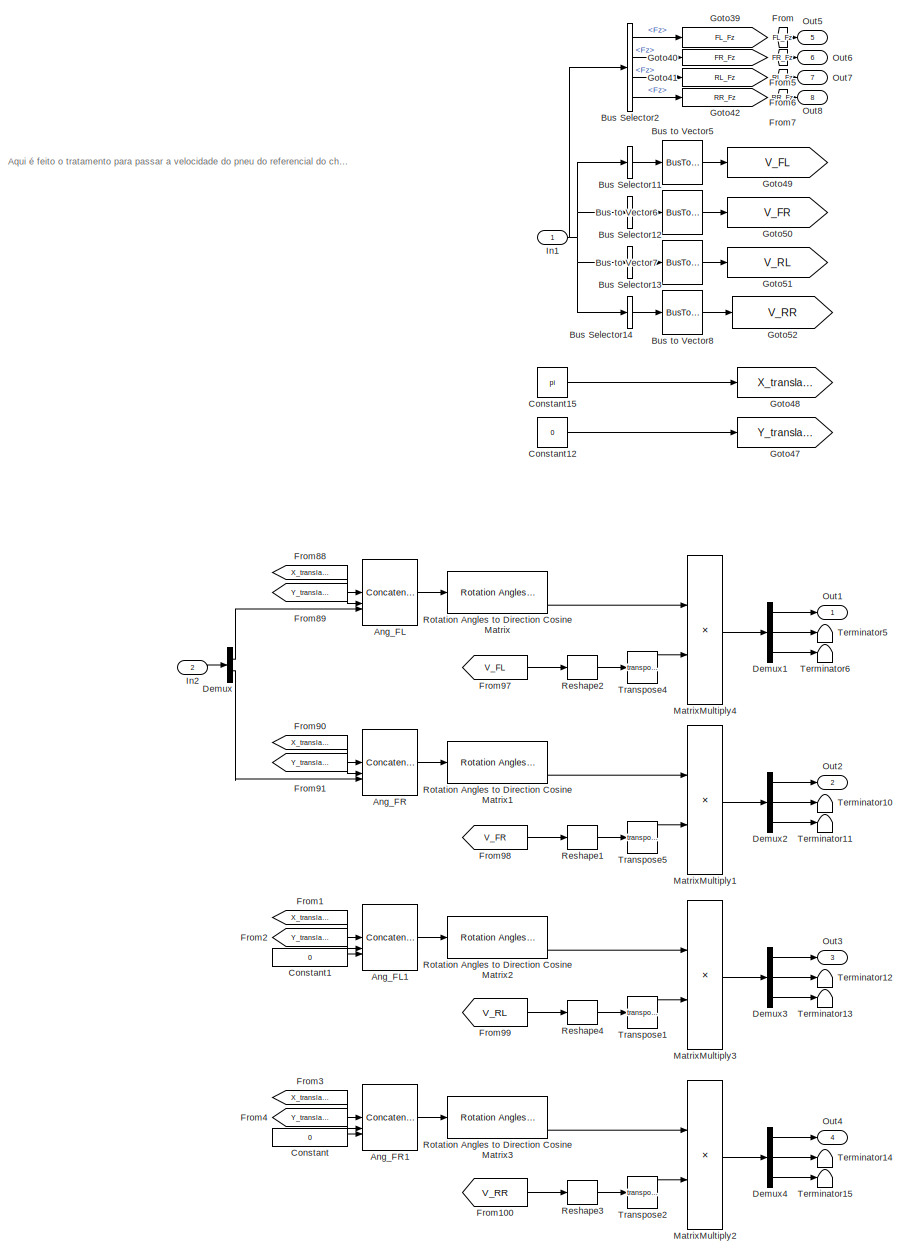
[diagram: Tratamento Velocidade - part 1/1, most of the canvas]
BLOCK [SubSystem] Tratamento Velocidade
BLOCK [Concatenate] Tratamento Velocidade/Ang_FL
  ConcatenateDimension = 2
  NumInputs = 3
BLOCK [Concatenate] Tratamento Velocidade/Ang_FL1
  ConcatenateDimension = 2
  NumInputs = 3
BLOCK [Concatenate] Tratamento Velocidade/Ang_FR
  ConcatenateDimension = 2
  NumInputs = 3
BLOCK [Concatenate] Tratamento Velocidade/Ang_FR1
  ConcatenateDimension = 2
  NumInputs = 3
BLOCK [BusSelector] Tratamento Velocidade/Bus Selector11
  OutputAsBus = on
  OutputSignals = BdyFrm.FrntAxl.Lft.Vel.xdot,BdyFrm.FrntAxl.Lft.Vel.ydot,BdyFrm.FrntAxl.Lft.Vel.zdot
BLOCK [BusSelector] Tratamento Velocidade/Bus Selector12
  OutputAsBus = on
  OutputSignals = BdyFrm.FrntAxl.Rght.Vel.xdot,BdyFrm.FrntAxl.Rght.Vel.ydot,BdyFrm.FrntAxl.Rght.Vel.zdot
BLOCK [BusSelector] Tratamento Velocidade/Bus Selector13
  OutputAsBus = on
  OutputSignals = BdyFrm.RearAxl.Lft.Vel.xdot,BdyFrm.RearAxl.Lft.Vel.ydot,BdyFrm.RearAxl.Lft.Vel.zdot
BLOCK [BusSelector] Tratamento Velocidade/Bus Selector14
  OutputAsBus = on
  OutputSignals = BdyFrm.RearAxl.Rght.Vel.xdot,BdyFrm.RearAxl.Rght.Vel.ydot,BdyFrm.RearAxl.Rght.Vel.zdot
BLOCK [BusSelector] Tratamento Velocidade/Bus Selector2
  OutputSignals = BdyFrm.Forces.Tires.FrntTires.Lft.Fz,BdyFrm.Forces.Tires.FrntTires.Rght.Fz,BdyFrm.Forces.Tires.RearTires.Lft.Fz,BdyFrm.Forces.Tires.RearTires.Rght.Fz
BLOCK [BusToVector] Tratamento Velocidade/Bus to Vector5
BLOCK [BusToVector] Tratamento Velocidade/Bus to Vector6
BLOCK [BusToVector] Tratamento Velocidade/Bus to Vector7
BLOCK [BusToVector] Tratamento Velocidade/Bus to Vector8
BLOCK [Constant] Tratamento Velocidade/Constant
  Value = 0
BLOCK [Constant] Tratamento Velocidade/Constant1
  Value = 0
BLOCK [Constant] Tratamento Velocidade/Constant12
  Value = 0
BLOCK [Constant] Tratamento Velocidade/Constant15
  Value = pi
BLOCK [Demux] Tratamento Velocidade/Demux
  Outputs = 2
BLOCK [Demux] Tratamento Velocidade/Demux1
  Outputs = 3
BLOCK [Demux] Tratamento Velocidade/Demux2
  Outputs = 3
BLOCK [Demux] Tratamento Velocidade/Demux3
  Outputs = 3
BLOCK [Demux] Tratamento Velocidade/Demux4
  Outputs = 3
BLOCK [From] Tratamento Velocidade/From
  GotoTag = FL_Fz
BLOCK [From] Tratamento Velocidade/From1
  GotoTag = X_translation
BLOCK [From] Tratamento Velocidade/From100
  GotoTag = V_RR
BLOCK [From] Tratamento Velocidade/From2
  GotoTag = Y_translation
BLOCK [From] Tratamento Velocidade/From3
  GotoTag = X_translation
BLOCK [From] Tratamento Velocidade/From4
  GotoTag = Y_translation
BLOCK [From] Tratamento Velocidade/From5
  GotoTag = FR_Fz
BLOCK [From] Tratamento Velocidade/From6
  GotoTag = RL_Fz
BLOCK [From] Tratamento Velocidade/From7
  GotoTag = RR_Fz
BLOCK [From] Tratamento Velocidade/From88
  GotoTag = X_translation
BLOCK [From] Tratamento Velocidade/From89
  GotoTag = Y_translation
BLOCK [From] Tratamento Velocidade/From90
  GotoTag = X_translation
BLOCK [From] Tratamento Velocidade/From91
  GotoTag = Y_translation
BLOCK [From] Tratamento Velocidade/From97
  GotoTag = V_FL
BLOCK [From] Tratamento Velocidade/From98
  GotoTag = V_FR
BLOCK [From] Tratamento Velocidade/From99
  GotoTag = V_RL
BLOCK [Goto] Tratamento Velocidade/Goto39
  GotoTag = FL_Fz
BLOCK [Goto] Tratamento Velocidade/Goto40
  GotoTag = FR_Fz
BLOCK [Goto] Tratamento Velocidade/Goto41
  GotoTag = RL_Fz
BLOCK [Goto] Tratamento Velocidade/Goto42
  GotoTag = RR_Fz
BLOCK [Goto] Tratamento Velocidade/Goto47
  GotoTag = Y_translation
BLOCK [Goto] Tratamento Velocidade/Goto48
  GotoTag = X_translation
BLOCK [Goto] Tratamento Velocidade/Goto49
  GotoTag = V_FL
BLOCK [Goto] Tratamento Velocidade/Goto50
  GotoTag = V_FR
BLOCK [Goto] Tratamento Velocidade/Goto51
  GotoTag = V_RL
BLOCK [Goto] Tratamento Velocidade/Goto52
  GotoTag = V_RR
BLOCK [Inport] Tratamento Velocidade/In1
BLOCK [Inport] Tratamento Velocidade/In2
  Port = 2
BLOCK [Product] Tratamento Velocidade/MatrixMultiply1
  Multiplication = Matrix(*)
BLOCK [Product] Tratamento Velocidade/MatrixMultiply2
  Multiplication = Matrix(*)
BLOCK [Product] Tratamento Velocidade/MatrixMultiply3
  Multiplication = Matrix(*)
BLOCK [Product] Tratamento Velocidade/MatrixMultiply4
  Multiplication = Matrix(*)
BLOCK [Outport] Tratamento Velocidade/Out1
BLOCK [Outport] Tratamento Velocidade/Out2
  Port = 2
BLOCK [Outport] Tratamento Velocidade/Out3
  Port = 3
BLOCK [Outport] Tratamento Velocidade/Out4
  Port = 4
BLOCK [Outport] Tratamento Velocidade/Out5
  Port = 5
BLOCK [Outport] Tratamento Velocidade/Out6
  Port = 6
BLOCK [Outport] Tratamento Velocidade/Out7
  Port = 7
BLOCK [Outport] Tratamento Velocidade/Out8
  Port = 8
BLOCK [Reshape] Tratamento Velocidade/Reshape1
  OutputDimensionality = Row vector (2-D)
BLOCK [Reshape] Tratamento Velocidade/Reshape2
  OutputDimensionality = Row vector (2-D)
BLOCK [Reshape] Tratamento Velocidade/Reshape3
  OutputDimensionality = Row vector (2-D)
BLOCK [Reshape] Tratamento Velocidade/Reshape4
  OutputDimensionality = Row vector (2-D)
BLOCK [Reference] Tratamento Velocidade/Rotation Angles to Direction Cosine Matrix  REF=sharedtransform/Rotation Angles to
Direction Cosine Matrix
  AttributesFormatString = Rotation Order: %<rotationOrder>
  SourceBlock = sharedtransform/Rotation Angles to\nDirection Cosine Matrix
  SourceType = Ang2DCM
BLOCK [Reference] Tratamento Velocidade/Rotation Angles to Direction Cosine Matrix1  REF=sharedtransform/Rotation Angles to
Direction Cosine Matrix
  AttributesFormatString = Rotation Order: %<rotationOrder>
  SourceBlock = sharedtransform/Rotation Angles to\nDirection Cosine Matrix
  SourceType = Ang2DCM
BLOCK [Reference] Tratamento Velocidade/Rotation Angles to Direction Cosine Matrix2  REF=sharedtransform/Rotation Angles to
Direction Cosine Matrix
  AttributesFormatString = Rotation Order: %<rotationOrder>
  SourceBlock = sharedtransform/Rotation Angles to\nDirection Cosine Matrix
  SourceType = Ang2DCM
BLOCK [Reference] Tratamento Velocidade/Rotation Angles to Direction Cosine Matrix3  REF=sharedtransform/Rotation Angles to
Direction Cosine Matrix
  AttributesFormatString = Rotation Order: %<rotationOrder>
  SourceBlock = sharedtransform/Rotation Angles to\nDirection Cosine Matrix
  SourceType = Ang2DCM
BLOCK [Terminator] Tratamento Velocidade/Terminator10
BLOCK [Terminator] Tratamento Velocidade/Terminator11
BLOCK [Terminator] Tratamento Velocidade/Terminator12
BLOCK [Terminator] Tratamento Velocidade/Terminator13
BLOCK [Terminator] Tratamento Velocidade/Terminator14
BLOCK [Terminator] Tratamento Velocidade/Terminator15
BLOCK [Terminator] Tratamento Velocidade/Terminator5
BLOCK [Terminator] Tratamento Velocidade/Terminator6
BLOCK [Math] Tratamento Velocidade/Transpose1
  Operator = transpose
BLOCK [Math] Tratamento Velocidade/Transpose2
  Operator = transpose
BLOCK [Math] Tratamento Velocidade/Transpose4
  Operator = transpose
BLOCK [Math] Tratamento Velocidade/Transpose5
  Operator = transpose
BLOCK [Concatenate] Vector Concatenate1
BLOCK [Concatenate] Vector Concatenate2
BLOCK [Concatenate] Vector Concatenate3
  NumInputs = 3
BLOCK [Concatenate] Vector Concatenate4
  NumInputs = 3
BLOCK [Concatenate] Vector Concatenate6
BLOCK [Reference] Vehicle Body 3DOF Dual Track  REF=autolibshared/Vehicle Body 3DOF Single Track
  LibrarySourceBlock = vehdynlibeom/Vehicle Body 3DOF Dual Track
  SourceBlock = autolibshared/Vehicle Body 3DOF Single Track
  SourceType = Vehicle Body 3DOF Lateral
BLOCK [Record] XY Graph
  CompatibilityTag = XY
  FileSettingsInternal = {"entries":[{"content":{"excelSettings":{"content":{},"type":"Streamout.ExcelSettings"},"parquetSettings":{"content":{},"type":"Streamout.ParquetSettings"}},"type":"Streamout.FileSettingStorage","uuid":""}],"packageUris":["http:\/\/schema.mathworks.com\/mf0\/streamout_blocks\/R2020a"],"version":"1.0"}
  FrameSettings = [0, 0]
  Layout = [1 1]
  NumPorts = 2.0
  SignalsInternal = {"entries":[{"content":{"signals":[{"content":{"blockPath":[],"dimensions":[1],"domain":"","lineColor":"#a2142f","plots":[ 1 ],"port":1,"sid":[""],"signalID":1,"signalName":"<Y>"},"type":"RecordBlkView.Signal","uuid":""},{"content":{"blockPath":[],"dimensions":[1],"domain":"","lineColor":"#139fff","plots":[ 1 ],"port":2,"sid":[""],"signalID":2,"signalName":"<X>"},"type":"RecordBlkView.Signal","uui...<+152ch>
  VisualizationBindings = {"xyplotplugin":{"info":[{"series":[{"bindingParametersList":[{"parameter":"X-Axis","signalID":1,"signalName":"<Y>"},{"parameter":"Y-Axis","signalID":2,"signalName":"<X>"}],"seriesID":0}],"subplotID":1}]}}
BLOCK [Reference] _  REF=autolibutils/Cont LPF
  SourceBlock = autolibutils/Cont LPF
BLOCK [Constant] axles_dist
  NameLocation = left
  Value = EV.RearAxlePositionfromCG + EV.FrontAxlePositionfromCG
BLOCK [Constant] fi
  NameLocation = left
BLOCK [Constant] g
  NameLocation = left
  Value = 9.81
BLOCK [ManualSwitch] on//off
BLOCK [Constant] raio da trajetória
  Value = -7.625
ANNOTATION (root): Chassi
ANNOTATION (root): Coeficiente de Atrito
ANNOTATION (root): Coeficiente de Atrito - Direito
ANNOTATION (root): Coeficiente de Atrito - Esquerdo
ANNOTATION (root): ControladorVT
ANNOTATION (root): Direção
ANNOTATION (root): Guinada Desejada
ANNOTATION (root): Guinada Máxima
ANNOTATION (root): Motores
ANNOTATION (root): Piloto
ANNOTATION (root): Pneus
ANNOTATION (root): Sensores
ANNOTATION (root): Slip Ratio
ANNOTATION (root): Trajetória
ANNOTATION (root): Visualizações Importantes
ANNOTATION Tratamento Velocidade: Aqui é feito o tratamento para passar a velocidade do pneu do referencial do chassi para o do pneu. Isso é necessário por que o bloco do pneu utiliza como referencial ele mesmo enquanto a informação que temos está no referencial do chassi.
LINE .:1 -> Vehicle Body 3DOF Dual Track:4
LINE 2D Visualization/Bus Creator8:1 -> 2D Visualization/Bus Selector8:1
LINE 2D Visualization/Bus Selector1:1 -> 2D Visualization/Bus to Vector2:1
LINE 2D Visualization/Bus Selector2:1 -> 2D Visualization/Vector Concatenate:1
LINE 2D Visualization/Bus Selector2:2 -> 2D Visualization/Vector Concatenate:2
LINE 2D Visualization/Bus Selector6:1 -> 2D Visualization/Bus to Vector:1
LINE 2D Visualization/Bus Selector7:1 -> 2D Visualization/Bus to Vector1:1
LINE 2D Visualization/Bus Selector8:1 -> 2D Visualization/Bus to Vector3:1
LINE 2D Visualization/Bus to Vector1:1 -> 2D Visualization/Vehicle XY Plotter1:3
LINE 2D Visualization/Bus to Vector2:1 -> 2D Visualization/Vehicle XY Plotter1:2
LINE 2D Visualization/Bus to Vector3:1 -> 2D Visualization/Vehicle XY Plotter1:5
LINE 2D Visualization/Bus to Vector:1 -> 2D Visualization/Vehicle XY Plotter1:1
LINE 2D Visualization/Constant1:1 -> 2D Visualization/Bus Creator8:2
LINE 2D Visualization/Constant2:1 -> 2D Visualization/Bus Creator8:3
LINE 2D Visualization/Constant:1 -> 2D Visualization/Bus Creator8:1
NET 2D Visualization/Ground3:1 -> 2D Visualization/Vector Concatenate2:1, 2D Visualization/Vector Concatenate2:2
NET 2D Visualization/Inport:1 -> 2D Visualization/Bus Selector1:1, 2D Visualization/Bus Selector2:1, 2D Visualization/Bus Selector6:1, 2D Visualization/Bus Selector7:1
LINE 2D Visualization/Vector Concatenate1:1 -> 2D Visualization/Vehicle XY Plotter1:4
LINE 2D Visualization/Vector Concatenate2:1 -> 2D Visualization/Vector Concatenate1:2
LINE 2D Visualization/Vector Concatenate:1 -> 2D Visualization/Vector Concatenate1:1
LINE 2D Visualization/Vehicle XY Plotter1/Data Type Conversion:1 -> 2D Visualization/Vehicle XY Plotter1/Rate Transition6:1
LINE 2D Visualization/Vehicle XY Plotter1/InertAng:1 -> 2D Visualization/Vehicle XY Plotter1/Rate Transition2:1
LINE 2D Visualization/Vehicle XY Plotter1/InertXYZ:1 -> 2D Visualization/Vehicle XY Plotter1/Rate Transition1:1
LINE 2D Visualization/Vehicle XY Plotter1/InertXdotYdotZdot:1 -> 2D Visualization/Vehicle XY Plotter1/Rate Transition4:1
LINE 2D Visualization/Vehicle XY Plotter1/Rate Transition1:1 -> 2D Visualization/Vehicle XY Plotter1/Vehicle XY Plotter:1
LINE 2D Visualization/Vehicle XY Plotter1/Rate Transition2:1 -> 2D Visualization/Vehicle XY Plotter1/Vehicle XY Plotter:2
LINE 2D Visualization/Vehicle XY Plotter1/Rate Transition3:1 -> 2D Visualization/Vehicle XY Plotter1/Vehicle XY Plotter:5
LINE 2D Visualization/Vehicle XY Plotter1/Rate Transition4:1 -> 2D Visualization/Vehicle XY Plotter1/Vehicle XY Plotter:3
LINE 2D Visualization/Vehicle XY Plotter1/Rate Transition5:1 -> 2D Visualization/Vehicle XY Plotter1/Vehicle XY Plotter:4
LINE 2D Visualization/Vehicle XY Plotter1/RefXYZ:1 -> 2D Visualization/Vehicle XY Plotter1/Rate Transition3:1
LINE 2D Visualization/Vehicle XY Plotter1/Reshape1:1 -> 2D Visualization/Vehicle XY Plotter1/Vector Concatenate:2
LINE 2D Visualization/Vehicle XY Plotter1/Reshape:1 -> 2D Visualization/Vehicle XY Plotter1/Vector Concatenate:1
LINE 2D Visualization/Vehicle XY Plotter1/Stats Ground:1 -> 2D Visualization/Vehicle XY Plotter1/Data Type Conversion:1
LINE 2D Visualization/Vehicle XY Plotter1/TireFx Ground:1 -> 2D Visualization/Vehicle XY Plotter1/Reshape:1
LINE 2D Visualization/Vehicle XY Plotter1/TireFy Ground:1 -> 2D Visualization/Vehicle XY Plotter1/Reshape1:1
LINE 2D Visualization/Vehicle XY Plotter1/Vector Concatenate:1 -> 2D Visualization/Vehicle XY Plotter1/Rate Transition7:1
LINE 2D Visualization/Vehicle XY Plotter1/WhlAng:1 -> 2D Visualization/Vehicle XY Plotter1/Rate Transition5:1
LINE Abs1:1 -> Switch1:1
LINE Abs:1 -> Switch2:3
LINE Band-Limited White Noise1:1 -> Sum of Elements4:2
LINE Band-Limited White Noise2:1 -> Sum of Elements5:2
LINE Band-Limited White Noise:1 -> Sum of Elements3:2
LINE Bus Selector1:1 -> Vector Concatenate3:1
LINE Bus Selector1:2 -> Vector Concatenate3:2
LINE Bus Selector1:3 -> Vector Concatenate3:3
LINE Bus Selector27:1 -> Three-axis Inertial Measurement Unit:2
LINE Bus Selector28:1 -> Three-axis Inertial Measurement Unit:1
LINE Bus Selector29:1 -> Three-axis Inertial Measurement Unit:3
LINE Bus Selector:1 -> XY Graph:1
LINE Bus Selector:2 -> XY Graph:2
LINE Constant10:1 -> Predictive Driver:1
LINE Constant11:1 -> FL_Wheel:1
LINE Constant12:1 -> Predictive Driver:3
LINE Constant13:1 -> Three-axis Inertial Measurement Unit:4
LINE Constant16:1 -> MATLAB Function2:3
LINE Constant17:1 -> MATLAB Function2:4
LINE Constant18:1 -> MATLAB Function3:3
LINE Constant19:1 -> MATLAB Function3:4
LINE Constant1:1 -> Mapped Motor (Right):1
LINE Constant20:1 -> MATLAB Function3:2
LINE Constant2:1 -> Three-axis Inertial Measurement Unit:5
LINE Constant4:1 -> MATLAB Function2:2
LINE Constant6:1 -> Mapped Motor (Left):1
NET Constant7:1 -> Vector Concatenate6:1, Vector Concatenate6:2
LINE Constant8:1 -> Manual Switch:1
LINE Constant9:1 -> FR_Wheel:1
LINE Demux1:1 -> Terminator5:1
LINE Demux1:2 -> Terminator6:1
LINE Demux1:3 -> Goto50:1
LINE Electronic Throttle Actuator Dynamics1:1 -> Saturation1:1
NET Engine Response1:1 -> Goto16:1, Scope11:2
NET Engine Response2:1 -> Goto19:1, Scope11:1
LINE FL_Wheel:1 -> Terminator25:1
LINE FL_Wheel:2 -> Terminator16:1
LINE FL_Wheel:3 -> Goto27:1
LINE FR_Wheel:1 -> Terminator24:1
LINE FR_Wheel:2 -> Terminator18:1
LINE FR_Wheel:3 -> Goto21:1
LINE From101:1 -> Scope10:1
LINE From102:1 -> Scope10:2
LINE From103:1 -> Scope10:3
LINE From104:1 -> Scope10:4
LINE From109:1 -> Vector Concatenate1:1
LINE From10:1 -> Scope:1
LINE From110:1 -> Vector Concatenate1:2
LINE From11:1 -> Gain5:1
LINE From13:1 -> MATLAB Function5:3
LINE From14:1 -> MATLAB Function5:2
LINE From15:1 -> Subtract:1
LINE From16:1 -> Subtract:2
LINE From17:1 -> Scope1:1
LINE From18:1 -> Scope2:1
LINE From19:1 -> Scope3:2
LINE From20:1 -> Scope3:1
LINE From21:1 -> Scope4:1
LINE From22:1 -> Scope4:2
NET From23:1 -> MATLAB Function8:1, Scope27:1
NET From24:1 -> MATLAB Function8:2, Scope27:2
NET From25:1 -> Integrator2:1, PID Controller1:1, Scope24:1
LINE From26:1 -> Scope13:2
LINE From27:1 -> Scope13:1
NET From2:1 -> Scope22:1, Transfer Fcn4:1
LINE From30:1 -> MATLAB Function1:2
LINE From31:1 -> MATLAB Function1:3
LINE From32:1 -> Relação de Transmissão:1
LINE From33:1 -> Scope7:1
NET From34:1 -> MATLAB Function6:1, Scope23:1
LINE From35:1 -> 2D Visualization:1
LINE From36:1 -> Scope9:1
LINE From37:1 -> Scope9:3
LINE From38:1 -> Min1:1
LINE From39:1 -> Vehicle Body 3DOF Dual Track:1
LINE From3:1 -> Scope13:4
LINE From40:1 -> Gain7:1
LINE From41:1 -> Min1:2
LINE From47:1 -> MATLAB Function4:1
LINE From48:1 -> MATLAB Function1:4
LINE From49:1 -> Sum1:2
LINE From4:1 -> MATLAB Function2:1
LINE From50:1 -> Sum:2
NET From53:1 -> Scope8:1, Transfer Fcn5:1
LINE From54:1 -> Predictive Driver:4
LINE From55:1 -> Scope18:1
LINE From56:1 -> Scope18:2
LINE From57:1 -> Integrator:1
LINE From58:1 -> Bus Selector:1
LINE From59:1 -> Bus Selector1:1
LINE From5:1 -> Scope13:3
LINE From60:1 -> Sum:1
LINE From61:1 -> Sum1:1
LINE From62:1 -> Predictive Driver:2
LINE From63:1 -> Scope9:2
LINE From6:1 -> Relação de Transmissão_:1
LINE From73:1 -> RL_Wheel:1
LINE From74:1 -> RR_Wheel:1
LINE From75:1 -> Transfer Fcn3:1
LINE From76:1 -> Transfer Fcn2:1
LINE From77:1 -> Transfer Fcn1:1
LINE From78:1 -> Transfer Fcn:1
LINE From79:1 -> Scope21:4
LINE From7:1 -> MATLAB Function3:1
LINE From80:1 -> FL_Wheel:2
LINE From81:1 -> FR_Wheel:2
LINE From82:1 -> RL_Wheel:2
LINE From83:1 -> RR_Wheel:2
LINE From85:1 -> Scope21:2
LINE From86:1 -> Scope21:1
LINE From87:1 -> Tratamento Velocidade:2
LINE From88:1 -> Scope21:3
LINE From8:1 -> MATLAB Function1:1
LINE From90:1 -> MATLAB Function5:1
NET From91:1 -> Scope28:1, Transfer Fcn6:1
LINE From92:1 -> Vector Concatenate2:1
LINE From93:1 -> Vector Concatenate2:2
NET From94:1 -> Bus Selector27:1, Bus Selector28:1, Bus Selector29:1
LINE From96:1 -> Tratamento Velocidade:1
LINE From9:1 -> MATLAB Function4:2
LINE Gain1:1 -> Engine Response2:1
NET Gain2:1 -> Goto32:1, Scope32:1
LINE Gain3:1 -> Goto12:1
NET Gain4:1 -> Goto13:1, Scope29:2
LINE Gain5:1 -> Sum of Elements6:2
NET Gain6:1 -> Goto11:1, Scope19:1
LINE Gain7:1 -> Sum of Elements6:1
LINE Gain:1 -> Engine Response1:1
NET Ground4:1 -> Switch1:3, Switch2:1
LINE Ground6:1 -> on//off:2
LINE Integrator2:1 -> Scope24:2
LINE Integrator:1 -> MATLAB Function9:1
LINE Ku:1 -> MATLAB Function4:3
LINE MATLAB Function1:1 -> Goto3:1
LINE MATLAB Function1:2 -> Goto2:1
LINE MATLAB Function2:1 -> Goto6:1
LINE MATLAB Function3:1 -> Goto8:1
LINE MATLAB Function4:1 -> Goto7:1
LINE MATLAB Function5:1 -> Goto9:1
LINE MATLAB Function6:1 -> Goto48:1
LINE MATLAB Function6:2 -> Goto49:1
NET MATLAB Function8:1 -> Minimal value between desired and max yaw:1, Scope27:3
LINE MATLAB Function9:1 -> Vector Concatenate4:1
LINE MATLAB Function9:2 -> Vector Concatenate4:2
LINE MATLAB Function9:3 -> Vector Concatenate4:3
NET Manual Switch3:1 -> Goto17:1, Scope26:1
NET Manual Switch4:1 -> Goto18:1, Scope26:2
LINE Manual Switch:1 -> Goto28:1
LINE Mapped Motor (Left):1 -> Terminator:1
LINE Mapped Motor (Left):2 -> Terminator3:1
LINE Mapped Motor (Left):3 -> Gain1:1
LINE Mapped Motor (Right):1 -> Terminator1:1
LINE Mapped Motor (Right):2 -> Terminator2:1
LINE Mapped Motor (Right):3 -> Gain:1
LINE Min1:1 -> Manual Switch:2
NET PID Controller1:1 -> Scope17:1, on//off:1
LINE Predictive Driver:1 -> Terminator4:1
NET Predictive Driver:2 -> Gain4:1, Scope29:1
LINE Predictive Driver:3 -> Gain2:1
LINE Predictive Driver:4 -> Terminator9:1
LINE RL_Wheel:1 -> Terminator23:1
NET RL_Wheel:2 -> Goto29:1, Scope12:1
LINE RL_Wheel:3 -> Goto5:1
LINE RR_Wheel:1 -> Terminator7:1
NET RR_Wheel:2 -> Goto53:1, Scope16:1
LINE RR_Wheel:3 -> Goto10:1
LINE Relação de Transmissão:1 -> Signal Specification4:1
LINE Relação de Transmissão_:1 -> Signal Specification1:1
NET Saturation1:1 -> Mapped Motor (Right):3, Scope15:1
LINE Saturation2:1 -> Manual Switch4:1
LINE Saturation3:1 -> Manual Switch3:1
NET Saturation:1 -> Mapped Motor (Left):3, Scope14:1
LINE Signal Specification1:1 -> Mapped Motor (Left):2
LINE Signal Specification4:1 -> Mapped Motor (Right):2
LINE Subtract:1 -> Goto15:1
LINE Sum of Elements1:1 -> Gain3:1
NET Sum of Elements3:1 -> Goto14:1, Scope22:2
NET Sum of Elements4:1 -> Scope8:2, Sum of Elements1:1
NET Sum of Elements5:1 -> Scope28:2, Sum of Elements1:2
LINE Sum of Elements6:1 -> Gain6:1
LINE Sum1:1 -> _:1
LINE Sum:1 -> Electronic Throttle Actuator Dynamics1:1
NET Switch1:1 -> Manual Switch3:2, Saturation3:1
NET Switch2:1 -> Manual Switch4:2, Saturation2:1
LINE Three-axis Inertial Measurement Unit:1 -> Terminator10:1
LINE Three-axis Inertial Measurement Unit:2 -> Demux1:1
LINE Transfer Fcn1:1 -> RL_Wheel:3
LINE Transfer Fcn2:1 -> FR_Wheel:3
LINE Transfer Fcn3:1 -> FL_Wheel:3
LINE Transfer Fcn4:1 -> Sum of Elements3:1
LINE Transfer Fcn5:1 -> Sum of Elements4:1
LINE Transfer Fcn6:1 -> Sum of Elements5:1
LINE Transfer Fcn:1 -> RR_Wheel:3
LINE Tratamento Velocidade/Ang_FL1:1 -> Tratamento Velocidade/Rotation Angles to Direction Cosine Matrix2:1
LINE Tratamento Velocidade/Ang_FL:1 -> Tratamento Velocidade/Rotation Angles to Direction Cosine Matrix:1
LINE Tratamento Velocidade/Ang_FR1:1 -> Tratamento Velocidade/Rotation Angles to Direction Cosine Matrix3:1
LINE Tratamento Velocidade/Ang_FR:1 -> Tratamento Velocidade/Rotation Angles to Direction Cosine Matrix1:1
LINE Tratamento Velocidade/Bus Selector11:1 -> Tratamento Velocidade/Bus to Vector5:1
LINE Tratamento Velocidade/Bus Selector12:1 -> Tratamento Velocidade/Bus to Vector6:1
LINE Tratamento Velocidade/Bus Selector13:1 -> Tratamento Velocidade/Bus to Vector7:1
LINE Tratamento Velocidade/Bus Selector14:1 -> Tratamento Velocidade/Bus to Vector8:1
LINE Tratamento Velocidade/Bus Selector2:1 -> Tratamento Velocidade/Goto39:1
LINE Tratamento Velocidade/Bus Selector2:2 -> Tratamento Velocidade/Goto40:1
LINE Tratamento Velocidade/Bus Selector2:3 -> Tratamento Velocidade/Goto41:1
LINE Tratamento Velocidade/Bus Selector2:4 -> Tratamento Velocidade/Goto42:1
LINE Tratamento Velocidade/Bus to Vector5:1 -> Tratamento Velocidade/Goto49:1
LINE Tratamento Velocidade/Bus to Vector6:1 -> Tratamento Velocidade/Goto50:1
LINE Tratamento Velocidade/Bus to Vector7:1 -> Tratamento Velocidade/Goto51:1
LINE Tratamento Velocidade/Bus to Vector8:1 -> Tratamento Velocidade/Goto52:1
LINE Tratamento Velocidade/Constant12:1 -> Tratamento Velocidade/Goto47:1
LINE Tratamento Velocidade/Constant15:1 -> Tratamento Velocidade/Goto48:1
LINE Tratamento Velocidade/Constant1:1 -> Tratamento Velocidade/Ang_FL1:3
LINE Tratamento Velocidade/Constant:1 -> Tratamento Velocidade/Ang_FR1:3
LINE Tratamento Velocidade/Demux1:1 -> Tratamento Velocidade/Out1:1
LINE Tratamento Velocidade/Demux1:2 -> Tratamento Velocidade/Terminator5:1
LINE Tratamento Velocidade/Demux1:3 -> Tratamento Velocidade/Terminator6:1
LINE Tratamento Velocidade/Demux2:1 -> Tratamento Velocidade/Out2:1
LINE Tratamento Velocidade/Demux2:2 -> Tratamento Velocidade/Terminator10:1
LINE Tratamento Velocidade/Demux2:3 -> Tratamento Velocidade/Terminator11:1
LINE Tratamento Velocidade/Demux3:1 -> Tratamento Velocidade/Out3:1
LINE Tratamento Velocidade/Demux3:2 -> Tratamento Velocidade/Terminator12:1
LINE Tratamento Velocidade/Demux3:3 -> Tratamento Velocidade/Terminator13:1
LINE Tratamento Velocidade/Demux4:1 -> Tratamento Velocidade/Out4:1
LINE Tratamento Velocidade/Demux4:2 -> Tratamento Velocidade/Terminator14:1
LINE Tratamento Velocidade/Demux4:3 -> Tratamento Velocidade/Terminator15:1
LINE Tratamento Velocidade/Demux:1 -> Tratamento Velocidade/Ang_FL:3
LINE Tratamento Velocidade/Demux:2 -> Tratamento Velocidade/Ang_FR:3
LINE Tratamento Velocidade/From100:1 -> Tratamento Velocidade/Reshape3:1
LINE Tratamento Velocidade/From1:1 -> Tratamento Velocidade/Ang_FL1:1
LINE Tratamento Velocidade/From2:1 -> Tratamento Velocidade/Ang_FL1:2
LINE Tratamento Velocidade/From3:1 -> Tratamento Velocidade/Ang_FR1:1
LINE Tratamento Velocidade/From4:1 -> Tratamento Velocidade/Ang_FR1:2
LINE Tratamento Velocidade/From5:1 -> Tratamento Velocidade/Out6:1
LINE Tratamento Velocidade/From6:1 -> Tratamento Velocidade/Out7:1
LINE Tratamento Velocidade/From7:1 -> Tratamento Velocidade/Out8:1
LINE Tratamento Velocidade/From88:1 -> Tratamento Velocidade/Ang_FL:1
LINE Tratamento Velocidade/From89:1 -> Tratamento Velocidade/Ang_FL:2
LINE Tratamento Velocidade/From90:1 -> Tratamento Velocidade/Ang_FR:1
LINE Tratamento Velocidade/From91:1 -> Tratamento Velocidade/Ang_FR:2
LINE Tratamento Velocidade/From97:1 -> Tratamento Velocidade/Reshape2:1
LINE Tratamento Velocidade/From98:1 -> Tratamento Velocidade/Reshape1:1
LINE Tratamento Velocidade/From99:1 -> Tratamento Velocidade/Reshape4:1
LINE Tratamento Velocidade/From:1 -> Tratamento Velocidade/Out5:1
NET Tratamento Velocidade/In1:1 -> Tratamento Velocidade/Bus Selector11:1, Tratamento Velocidade/Bus Selector12:1, Tratamento Velocidade/Bus Selector13:1, Tratamento Velocidade/Bus Selector14:1, Tratamento Velocidade/Bus Selector2:1
LINE Tratamento Velocidade/In2:1 -> Tratamento Velocidade/Demux:1
LINE Tratamento Velocidade/MatrixMultiply1:1 -> Tratamento Velocidade/Demux2:1
LINE Tratamento Velocidade/MatrixMultiply2:1 -> Tratamento Velocidade/Demux4:1
LINE Tratamento Velocidade/MatrixMultiply3:1 -> Tratamento Velocidade/Demux3:1
LINE Tratamento Velocidade/MatrixMultiply4:1 -> Tratamento Velocidade/Demux1:1
LINE Tratamento Velocidade/Reshape1:1 -> Tratamento Velocidade/Transpose5:1
LINE Tratamento Velocidade/Reshape2:1 -> Tratamento Velocidade/Transpose4:1
LINE Tratamento Velocidade/Reshape3:1 -> Tratamento Velocidade/Transpose2:1
LINE Tratamento Velocidade/Reshape4:1 -> Tratamento Velocidade/Transpose1:1
LINE Tratamento Velocidade/Rotation Angles to Direction Cosine Matrix1:1 -> Tratamento Velocidade/MatrixMultiply1:1
LINE Tratamento Velocidade/Rotation Angles to Direction Cosine Matrix2:1 -> Tratamento Velocidade/MatrixMultiply3:1
LINE Tratamento Velocidade/Rotation Angles to Direction Cosine Matrix3:1 -> Tratamento Velocidade/MatrixMultiply2:1
LINE Tratamento Velocidade/Rotation Angles to Direction Cosine Matrix:1 -> Tratamento Velocidade/MatrixMultiply4:1
LINE Tratamento Velocidade/Transpose1:1 -> Tratamento Velocidade/MatrixMultiply3:2
LINE Tratamento Velocidade/Transpose2:1 -> Tratamento Velocidade/MatrixMultiply2:2
LINE Tratamento Velocidade/Transpose4:1 -> Tratamento Velocidade/MatrixMultiply4:2
LINE Tratamento Velocidade/Transpose5:1 -> Tratamento Velocidade/MatrixMultiply1:2
LINE Tratamento Velocidade:1 -> Goto43:1
LINE Tratamento Velocidade:2 -> Goto44:1
LINE Tratamento Velocidade:3 -> Goto45:1
LINE Tratamento Velocidade:4 -> Goto46:1
LINE Tratamento Velocidade:5 -> Goto39:1
LINE Tratamento Velocidade:6 -> Goto40:1
LINE Tratamento Velocidade:7 -> Goto41:1
LINE Tratamento Velocidade:8 -> Goto42:1
LINE Vector Concatenate1:1 -> Vehicle Body 3DOF Dual Track:3
LINE Vector Concatenate2:1 -> Goto23:1
LINE Vector Concatenate3:1 -> Predictive Driver:5
LINE Vector Concatenate4:1 -> Goto33:1
LINE Vector Concatenate6:1 -> Vehicle Body 3DOF Dual Track:2
LINE Vehicle Body 3DOF Dual Track:1 -> Goto20:1
LINE Vehicle Body 3DOF Dual Track:2 -> Goto22:1
LINE Vehicle Body 3DOF Dual Track:3 -> Terminator20:1
LINE Vehicle Body 3DOF Dual Track:4 -> Terminator22:1
LINE Vehicle Body 3DOF Dual Track:5 -> Goto4:1
LINE Vehicle Body 3DOF Dual Track:6 -> Terminator11:1
LINE Vehicle Body 3DOF Dual Track:7 -> Terminator12:1
LINE _:1 -> Saturation:1
LINE axles_dist:1 -> MATLAB Function4:4
LINE fi:1 -> MATLAB Function5:5
LINE g:1 -> MATLAB Function5:4
NET on//off:1 -> Abs1:1, Abs:1, Switch1:2, Switch2:2
LINE raio da trajetória:1 -> MATLAB Function9:2
note: NET lines group one-source signal fan-out (src -> all destinations, sorted); 1:1 wires keep LINE
CHART MATLAB Function1 states=1 transitions=1
  STATE_LABEL 'eML_blk_kernel()'
  STATE_LABEL 'SCRIPT:\nfunction [SR_L, SR_R] = fcn(FL_speed, FR_speed, RL_speed, RR_speed)\n%#codegen\n\n% --- Configuração de Segurança ---\n% \'epsilon\' é um valor pequeno que impede a divisão por zero.\n% 0.1 m/s é um bom valor: abaixo disso, consideramos "parado".\nepsilon = 0.1; \n\n% --- Slip Esquerdo (SR_L) ---\n% A fórmula é: (V_roda - V_carro) / V_roda\n% Truque: O denominador será o MAIOR valor entre \'a velocidad...<+308ch>'
CHART MATLAB Function2 states=1 transitions=1
  STATE_LABEL 'eML_blk_kernel()'
  STATE_LABEL 'SCRIPT:\nfunction Atrito_L = fcn(SR_L, C1, C2, C3)\n\nAtrito_L = (C1*(1-(exp(SR_L*C2*(-1)))))-(C3*SR_L);\n\n\n\n\n\n'
CHART MATLAB Function3 states=1 transitions=1
  STATE_LABEL 'eML_blk_kernel()'
  STATE_LABEL 'SCRIPT:\nfunction Atrito_R = fcn(SR_R, C1, C2, C3)\n\nAtrito_R = (C1*(1-(exp(SR_R*C2*(-1)))))-(C3*SR_R);\n\n\n\n'
CHART MATLAB Function4 states=1 transitions=1
  STATE_LABEL 'eML_blk_kernel()'
  STATE_LABEL 'SCRIPT:\nfunction desired_yaw = fcn(steering_angle, Vcg, Ku, axles_dist)\n\nepsilon = 0.01; \n\nnumerador = Vcg * steering_angle;\n\ndenominador_raw = axles_dist + (Ku * Vcg * Vcg);\n\ndenominador_seguro = max(abs(denominador_raw), epsilon);\n\ndesired_yaw = numerador / denominador_seguro;\n\nend'
CHART MATLAB Function5 states=1 transitions=1
  STATE_LABEL 'eML_blk_kernel()'
  STATE_LABEL 'SCRIPT:\nfunction max_yaw = fcn(angle, atrito, Vcg, g, fi)\n\nepsilon = 0.1; \n\nif angle >= 0\n    a = 1;\nelse\n    a = -1;\nend\n\nnumerador = fi * atrito * g;\n\ndenominador = max(abs(Vcg), epsilon);\n\nmax_yaw = a * (numerador / denominador);\n\nend\n'
CHART MATLAB Function6 states=1 transitions=1
  STATE_LABEL 'eML_blk_kernel()'
  STATE_LABEL 'SCRIPT:\nfunction [left_wheel_angle, right_wheel_angle] = fcn(steering_angle)\n\nif(steering_angle<=0)\n    left_wheel_angle = 0.30732918494924799*steering_angle;\n    right_wheel_angle = 0.268948751217872*steering_angle;\n\nelse (steering_angle>0)\n    left_wheel_angle = 0.268948678266664*steering_angle;\n    right_wheel_angle = 0.30732915888671*steering_angle;\nend\nend'
CHART MATLAB Function8 states=1 transitions=1
  STATE_LABEL 'eML_blk_kernel()'
  STATE_LABEL 'SCRIPT:\nfunction VT_Setpoint = fcn(desired_yaw, max_yaw)\n\nif desired_yaw >= 0\n    VT_Setpoint = min(desired_yaw, max_yaw);\nelse\n    VT_Setpoint = max(desired_yaw, max_yaw);\nend\n\n\n'
CHART MATLAB Function9 states=1 transitions=1
  STATE_LABEL 'eML_blk_kernel()'
  STATE_LABEL 'SCRIPT:\nfunction [x_ref, y_ref, psi_ref] = fcn(s, R)\n%#codegen\n% Esta função calcula as referências de trajetória para um círculo.\n% - Início: [0, 0]\n% - Centro: [R, 0]\n% - Entrada s: Distância percorrida (do Integrator)\n% - Entrada R: Raio do círculo (pode ser positivo ou negativo)\n% - Saída x_ref: Posição X de referência\n% - Saída y_ref: Posição Y de referência\n% - Saída psi_ref: Ângulo da tange...<+967ch>'
CHART  states=0 transitions=0
CHART  states=0 transitions=0
CHART  states=0 transitions=0
CHART  states=0 transitions=0
CHART  states=0 transitions=0
CHART  states=0 transitions=0
CHART  states=0 transitions=0
CHART  states=0 transitions=0
